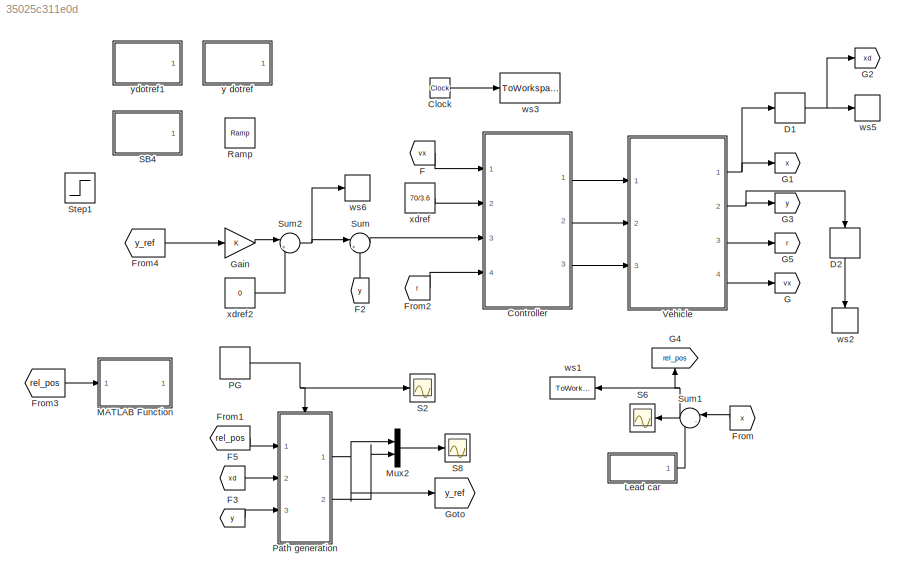
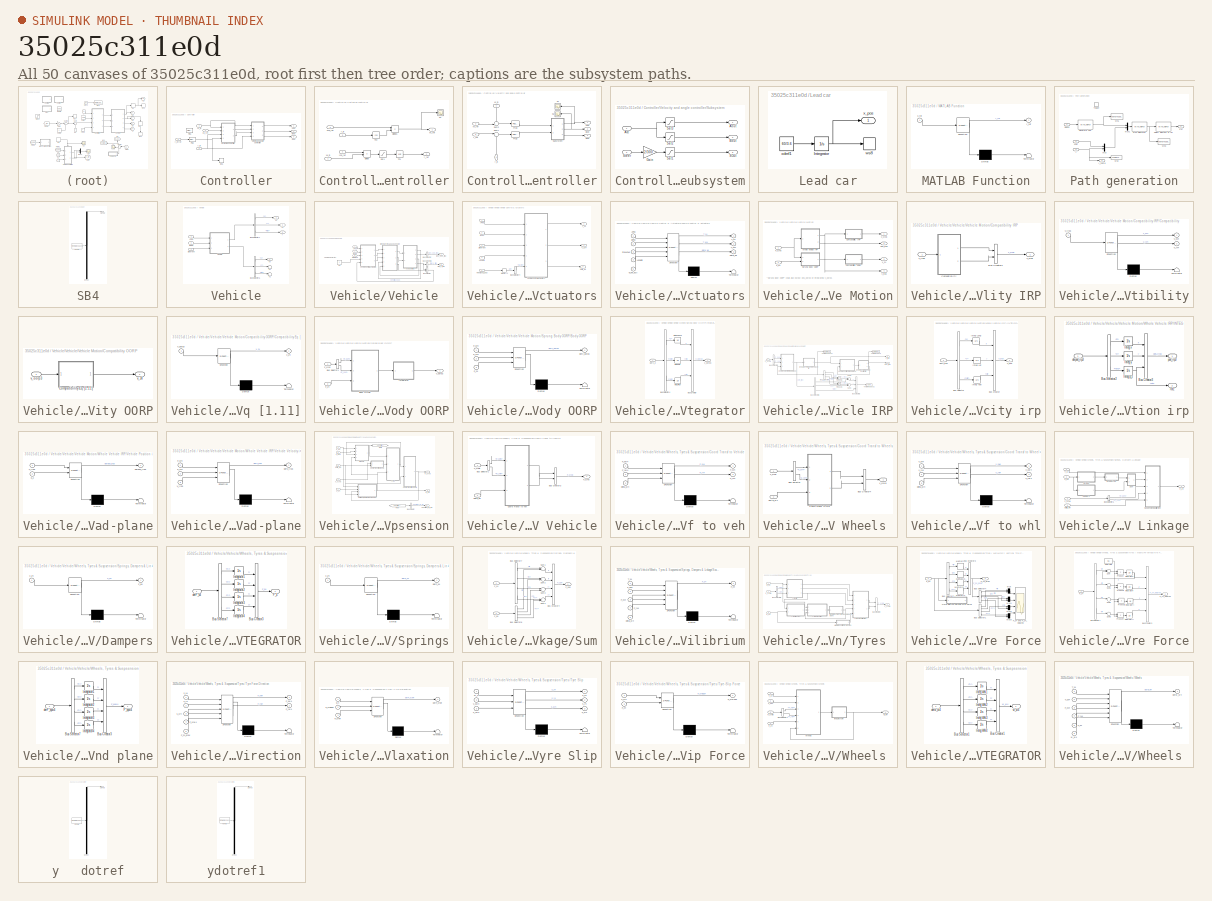
[diagram: thumbnail index - all 50 canvases of the model, root first then tree order]
MODEL slx_35025c311e0d
KIND model
CONFIG StopFcn = plotting
BLOCK [Clock] Clock
BLOCK [SubSystem] Controller
  Ports = [4, 3]
  RequestExecContextInheritance = off
BLOCK [Outport] Controller/Aout
  IconDisplay = Port number
BLOCK [Outport] Controller/Bout
  IconDisplay = Port number
  Port = 2
BLOCK [SubSystem] Controller/Cartesian controller
  Ports = [4, 2]
  RequestExecContextInheritance = off
BLOCK [Product] Controller/Cartesian controller/Divide
  InputSameDT = off
  Inputs = */
  OutDataTypeStr = Inherit: Inherit via internal rule
  Ports = [2, 1]
  RndMeth = Floor
  SaturateOnIntegerOverflow = off
BLOCK [Product] Controller/Cartesian controller/Divide1
  InputSameDT = off
  Inputs = */
  OutDataTypeStr = Inherit: Inherit via internal rule
  Ports = [2, 1]
  RndMeth = Floor
  SaturateOnIntegerOverflow = off
BLOCK [Scope] Controller/Cartesian controller/S4
  Floating = off
  NumInputPorts = 1
  Ports = [1]
  SaveName = ScopeData4
  ShowLegends = off
BLOCK [Saturate] Controller/Cartesian controller/Sat1
  InputPortMap = u0
  LowerLimit = -1
  Ports = [1, 1]
  UpperLimit = 1
BLOCK [Trigonometry] Controller/Cartesian controller/TF1
  Operator = asin
  Ports = [1, 1]
BLOCK [Trigonometry] Controller/Cartesian controller/TF2
  Operator = cos
  Ports = [1, 1]
BLOCK [Inport] Controller/Cartesian controller/r_in
  IconDisplay = Port number
  Port = 3
BLOCK [Outport] Controller/Cartesian controller/r_ref
  IconDisplay = Port number
  Port = 2
BLOCK [Inport] Controller/Cartesian controller/vx_in
  IconDisplay = Port number
BLOCK [Outport] Controller/Cartesian controller/vx_ref
  IconDisplay = Port number
BLOCK [Inport] Controller/Cartesian controller/xcd_ref
  IconDisplay = Port number
  Port = 2
BLOCK [Inport] Controller/Cartesian controller/ycd_ref
  IconDisplay = Port number
  Port = 4
BLOCK [Reference] Controller/PID1  REF=simulink/Continuous/PID Controller
  AntiWindupMode = none
  Controller = PID
  D = 4
  DOutDataTypeStr = Inherit: Inherit via internal rule
  DOutMax = []
  DOutMin = []
  DParamDataTypeStr = Inherit: Inherit via internal rule
  DParamMax = []
  DParamMin = []
  DifferentiatorICPrevScaledInput = 0
  DifferentiatorOutDataTypeStr = Inherit: Inherit via internal rule
  DifferentiatorOutMax = []
  DifferentiatorOutMin = []
  ExternalReset = none
  FilterContinuousStateAttributes = ''
  FilterMethod = Forward Euler
  FilterOutDataTypeStr = Inherit: Inherit via internal rule
  FilterOutMax = []
  FilterOutMin = []
  FilterRTWStateStorageClass = Auto
  FilterStateMustResolveToSignalObject = off
  Form = Parallel
  I = 0
  IOutDataTypeStr = Inherit: Inherit via internal rule
  IOutMax = []
  IOutMin = []
  IParamDataTypeStr = Inherit: Inherit via internal rule
  IParamMax = []
  IParamMin = []
  IgnoreLimit = off
  InitialConditionForFilter = 0
  InitialConditionForIntegrator = 0
  InitialConditionSource = internal
  IntegratorContinuousStateAttributes = ''
  IntegratorMethod = Forward Euler
  IntegratorOutDataTypeStr = Inherit: Inherit via internal rule
  IntegratorOutMax = []
  IntegratorOutMin = []
  IntegratorRTWStateStorageClass = Auto
  IntegratorStateMustResolveToSignalObject = off
  Kb = 1
  KbOutDataTypeStr = Inherit: Inherit via internal rule
  KbOutMax = []
  KbOutMin = []
  KbParamDataTypeStr = Inherit: Inherit via internal rule
  KbParamMax = []
  KbParamMin = []
  Kt = 1
  KtOutDataTypeStr = Inherit: Inherit via internal rule
  KtOutMax = []
  KtOutMin = []
  KtParamDataTypeStr = Inherit: Inherit via internal rule
  KtParamMax = []
  KtParamMin = []
  LimitOutput = off
  LinearizeAsGain = on
  LockScale = off
  LowerSaturationLimit = -inf
  N = 0
  NOutDataTypeStr = Inherit: Inherit via internal rule
  NOutMax = []
  NOutMin = []
  NParamDataTypeStr = Inherit: Inherit via internal rule
  NParamMax = []
  NParamMin = []
  P = 2
  POutDataTypeStr = Inherit: Inherit via internal rule
  POutMax = []
  POutMin = []
  PParamDataTypeStr = Inherit: Inherit via internal rule
  PParamMax = []
  PParamMin = []
  Ports = [1, 1]
  RndMeth = Floor
  SampleTime = -1
  SaturateOnIntegerOverflow = off
  SaturationOutDataTypeStr = Inherit: Same as input
  SaturationOutMax = []
  SaturationOutMin = []
  SourceBlock = simulink/Continuous/PID Controller
  SourceType = PID 1dof
  SumAccumDataTypeStr = Inherit: Inherit via internal rule
  SumDAccumDataTypeStr = Inherit: Inherit via internal rule
  SumDOutDataTypeStr = Inherit: Inherit via internal rule
  SumDOutMax = []
  SumDOutMin = []
  SumI1AccumDataTypeStr = Inherit: Inherit via internal rule
  SumI1OutDataTypeStr = Inherit: Inherit via internal rule
  SumI1OutMax = []
  SumI1OutMin = []
  SumI2AccumDataTypeStr = Inherit: Inherit via internal rule
  SumI2OutDataTypeStr = Inherit: Inherit via internal rule
  SumI2OutMax = []
  SumI2OutMin = []
  SumI3AccumDataTypeStr = Inherit: Inherit via internal rule
  SumI3OutDataTypeStr = Inherit: Inherit via internal rule
  SumI3OutMax = []
  SumI3OutMin = []
  SumOutDataTypeStr = Inherit: Inherit via internal rule
  SumOutMax = []
  SumOutMin = []
  TimeDomain = Continuous-time
  TrackingMode = off
  UpperSaturationLimit = inf
  UseFilter = on
  ZeroCross = on
BLOCK [Reference] Controller/PID2  REF=simulink/Continuous/PID Controller
  AntiWindupMode = none
  Controller = PID
  D = 0.1
  DOutDataTypeStr = Inherit: Inherit via internal rule
  DOutMax = []
  DOutMin = []
  DParamDataTypeStr = Inherit: Inherit via internal rule
  DParamMax = []
  DParamMin = []
  DifferentiatorICPrevScaledInput = 0
  DifferentiatorOutDataTypeStr = Inherit: Inherit via internal rule
  DifferentiatorOutMax = []
  DifferentiatorOutMin = []
  ExternalReset = none
  FilterContinuousStateAttributes = ''
  FilterMethod = Forward Euler
  FilterOutDataTypeStr = Inherit: Inherit via internal rule
  FilterOutMax = []
  FilterOutMin = []
  FilterRTWStateStorageClass = Auto
  FilterStateMustResolveToSignalObject = off
  Form = Parallel
  I = 1
  IOutDataTypeStr = Inherit: Inherit via internal rule
  IOutMax = []
  IOutMin = []
  IParamDataTypeStr = Inherit: Inherit via internal rule
  IParamMax = []
  IParamMin = []
  IgnoreLimit = off
  InitialConditionForFilter = 0
  InitialConditionForIntegrator = 0
  InitialConditionSource = internal
  IntegratorContinuousStateAttributes = ''
  IntegratorMethod = Forward Euler
  IntegratorOutDataTypeStr = Inherit: Inherit via internal rule
  IntegratorOutMax = []
  IntegratorOutMin = []
  IntegratorRTWStateStorageClass = Auto
  IntegratorStateMustResolveToSignalObject = off
  Kb = 1
  KbOutDataTypeStr = Inherit: Inherit via internal rule
  KbOutMax = []
  KbOutMin = []
  KbParamDataTypeStr = Inherit: Inherit via internal rule
  KbParamMax = []
  KbParamMin = []
  Kt = 1
  KtOutDataTypeStr = Inherit: Inherit via internal rule
  KtOutMax = []
  KtOutMin = []
  KtParamDataTypeStr = Inherit: Inherit via internal rule
  KtParamMax = []
  KtParamMin = []
  LimitOutput = off
  LinearizeAsGain = on
  LockScale = off
  LowerSaturationLimit = -inf
  N = 0
  NOutDataTypeStr = Inherit: Inherit via internal rule
  NOutMax = []
  NOutMin = []
  NParamDataTypeStr = Inherit: Inherit via internal rule
  NParamMax = []
  NParamMin = []
  P = 2
  POutDataTypeStr = Inherit: Inherit via internal rule
  POutMax = []
  POutMin = []
  PParamDataTypeStr = Inherit: Inherit via internal rule
  PParamMax = []
  PParamMin = []
  Ports = [1, 1]
  RndMeth = Floor
  SampleTime = -1
  SaturateOnIntegerOverflow = off
  SaturationOutDataTypeStr = Inherit: Same as input
  SaturationOutMax = []
  SaturationOutMin = []
  SourceBlock = simulink/Continuous/PID Controller
  SourceType = PID 1dof
  SumAccumDataTypeStr = Inherit: Inherit via internal rule
  SumDAccumDataTypeStr = Inherit: Inherit via internal rule
  SumDOutDataTypeStr = Inherit: Inherit via internal rule
  SumDOutMax = []
  SumDOutMin = []
  SumI1AccumDataTypeStr = Inherit: Inherit via internal rule
  SumI1OutDataTypeStr = Inherit: Inherit via internal rule
  SumI1OutMax = []
  SumI1OutMin = []
  SumI2AccumDataTypeStr = Inherit: Inherit via internal rule
  SumI2OutDataTypeStr = Inherit: Inherit via internal rule
  SumI2OutMax = []
  SumI2OutMin = []
  SumI3AccumDataTypeStr = Inherit: Inherit via internal rule
  SumI3OutDataTypeStr = Inherit: Inherit via internal rule
  SumI3OutMax = []
  SumI3OutMin = []
  SumOutDataTypeStr = Inherit: Inherit via internal rule
  SumOutMax = []
  SumOutMin = []
  TimeDomain = Continuous-time
  TrackingMode = off
  UpperSaturationLimit = inf
  UseFilter = on
  ZeroCross = on
BLOCK [Outport] Controller/Sout
  IconDisplay = Port number
  Port = 3
BLOCK [SubSystem] Controller/Velocity and angle controller
  Ports = [4, 3]
  RequestExecContextInheritance = off
BLOCK [Outport] Controller/Velocity and angle controller/Aout
  IconDisplay = Port number
BLOCK [Outport] Controller/Velocity and angle controller/Bout
  IconDisplay = Port number
  Port = 2
BLOCK [Reference] Controller/Velocity and angle controller/PID2  REF=simulink/Continuous/PID Controller
  AntiWindupMode = none
  Controller = PID
  D = 0
  DOutDataTypeStr = Inherit: Inherit via internal rule
  DOutMax = []
  DOutMin = []
  DParamDataTypeStr = Inherit: Inherit via internal rule
  DParamMax = []
  DParamMin = []
  DifferentiatorICPrevScaledInput = 0
  DifferentiatorOutDataTypeStr = Inherit: Inherit via internal rule
  DifferentiatorOutMax = []
  DifferentiatorOutMin = []
  ExternalReset = none
  FilterContinuousStateAttributes = ''
  FilterMethod = Forward Euler
  FilterOutDataTypeStr = Inherit: Inherit via internal rule
  FilterOutMax = []
  FilterOutMin = []
  FilterRTWStateStorageClass = Auto
  FilterStateMustResolveToSignalObject = off
  Form = Parallel
  I = 1
  IOutDataTypeStr = Inherit: Inherit via internal rule
  IOutMax = []
  IOutMin = []
  IParamDataTypeStr = Inherit: Inherit via internal rule
  IParamMax = []
  IParamMin = []
  IgnoreLimit = off
  InitialConditionForFilter = 0
  InitialConditionForIntegrator = 0
  InitialConditionSource = internal
  IntegratorContinuousStateAttributes = ''
  IntegratorMethod = Forward Euler
  IntegratorOutDataTypeStr = Inherit: Inherit via internal rule
  IntegratorOutMax = []
  IntegratorOutMin = []
  IntegratorRTWStateStorageClass = Auto
  IntegratorStateMustResolveToSignalObject = off
  Kb = 1
  KbOutDataTypeStr = Inherit: Inherit via internal rule
  KbOutMax = []
  KbOutMin = []
  KbParamDataTypeStr = Inherit: Inherit via internal rule
  KbParamMax = []
  KbParamMin = []
  Kt = 1
  KtOutDataTypeStr = Inherit: Inherit via internal rule
  KtOutMax = []
  KtOutMin = []
  KtParamDataTypeStr = Inherit: Inherit via internal rule
  KtParamMax = []
  KtParamMin = []
  LimitOutput = off
  LinearizeAsGain = on
  LockScale = off
  LowerSaturationLimit = -inf
  N = 100
  NOutDataTypeStr = Inherit: Inherit via internal rule
  NOutMax = []
  NOutMin = []
  NParamDataTypeStr = Inherit: Inherit via internal rule
  NParamMax = []
  NParamMin = []
  P = 5000
  POutDataTypeStr = Inherit: Inherit via internal rule
  POutMax = []
  POutMin = []
  PParamDataTypeStr = Inherit: Inherit via internal rule
  PParamMax = []
  PParamMin = []
  Ports = [1, 1]
  RndMeth = Floor
  SampleTime = -1
  SaturateOnIntegerOverflow = off
  SaturationOutDataTypeStr = Inherit: Same as input
  SaturationOutMax = []
  SaturationOutMin = []
  SourceBlock = simulink/Continuous/PID Controller
  SourceType = PID 1dof
  SumAccumDataTypeStr = Inherit: Inherit via internal rule
  SumDAccumDataTypeStr = Inherit: Inherit via internal rule
  SumDOutDataTypeStr = Inherit: Inherit via internal rule
  SumDOutMax = []
  SumDOutMin = []
  SumI1AccumDataTypeStr = Inherit: Inherit via internal rule
  SumI1OutDataTypeStr = Inherit: Inherit via internal rule
  SumI1OutMax = []
  SumI1OutMin = []
  SumI2AccumDataTypeStr = Inherit: Inherit via internal rule
  SumI2OutDataTypeStr = Inherit: Inherit via internal rule
  SumI2OutMax = []
  SumI2OutMin = []
  SumI3AccumDataTypeStr = Inherit: Inherit via internal rule
  SumI3OutDataTypeStr = Inherit: Inherit via internal rule
  SumI3OutMax = []
  SumI3OutMin = []
  SumOutDataTypeStr = Inherit: Inherit via internal rule
  SumOutMax = []
  SumOutMin = []
  TimeDomain = Continuous-time
  TrackingMode = off
  UpperSaturationLimit = inf
  UseFilter = on
  ZeroCross = on
BLOCK [Reference] Controller/Velocity and angle controller/PID3  REF=simulink/Continuous/PID Controller
  AntiWindupMode = none
  Controller = P
  D = 0
  DOutDataTypeStr = Inherit: Inherit via internal rule
  DOutMax = []
  DOutMin = []
  DParamDataTypeStr = Inherit: Inherit via internal rule
  DParamMax = []
  DParamMin = []
  DifferentiatorICPrevScaledInput = 0
  DifferentiatorOutDataTypeStr = Inherit: Inherit via internal rule
  DifferentiatorOutMax = []
  DifferentiatorOutMin = []
  ExternalReset = none
  FilterContinuousStateAttributes = ''
  FilterMethod = Forward Euler
  FilterOutDataTypeStr = Inherit: Inherit via internal rule
  FilterOutMax = []
  FilterOutMin = []
  FilterRTWStateStorageClass = Auto
  FilterStateMustResolveToSignalObject = off
  Form = Parallel
  I = 0
  IOutDataTypeStr = Inherit: Inherit via internal rule
  IOutMax = []
  IOutMin = []
  IParamDataTypeStr = Inherit: Inherit via internal rule
  IParamMax = []
  IParamMin = []
  IgnoreLimit = off
  InitialConditionForFilter = 0
  InitialConditionForIntegrator = 0
  InitialConditionSource = internal
  IntegratorContinuousStateAttributes = ''
  IntegratorMethod = Forward Euler
  IntegratorOutDataTypeStr = Inherit: Inherit via internal rule
  IntegratorOutMax = []
  IntegratorOutMin = []
  IntegratorRTWStateStorageClass = Auto
  IntegratorStateMustResolveToSignalObject = off
  Kb = 1
  KbOutDataTypeStr = Inherit: Inherit via internal rule
  KbOutMax = []
  KbOutMin = []
  KbParamDataTypeStr = Inherit: Inherit via internal rule
  KbParamMax = []
  KbParamMin = []
  Kt = 1
  KtOutDataTypeStr = Inherit: Inherit via internal rule
  KtOutMax = []
  KtOutMin = []
  KtParamDataTypeStr = Inherit: Inherit via internal rule
  KtParamMax = []
  KtParamMin = []
  LimitOutput = off
  LinearizeAsGain = on
  LockScale = off
  LowerSaturationLimit = -inf
  N = 100
  NOutDataTypeStr = Inherit: Inherit via internal rule
  NOutMax = []
  NOutMin = []
  NParamDataTypeStr = Inherit: Inherit via internal rule
  NParamMax = []
  NParamMin = []
  P = 100
  POutDataTypeStr = Inherit: Inherit via internal rule
  POutMax = []
  POutMin = []
  PParamDataTypeStr = Inherit: Inherit via internal rule
  PParamMax = []
  PParamMin = []
  Ports = [1, 1]
  RndMeth = Floor
  SampleTime = -1
  SaturateOnIntegerOverflow = off
  SaturationOutDataTypeStr = Inherit: Same as input
  SaturationOutMax = []
  SaturationOutMin = []
  SourceBlock = simulink/Continuous/PID Controller
  SourceType = PID 1dof
  SumAccumDataTypeStr = Inherit: Inherit via internal rule
  SumDAccumDataTypeStr = Inherit: Inherit via internal rule
  SumDOutDataTypeStr = Inherit: Inherit via internal rule
  SumDOutMax = []
  SumDOutMin = []
  SumI1AccumDataTypeStr = Inherit: Inherit via internal rule
  SumI1OutDataTypeStr = Inherit: Inherit via internal rule
  SumI1OutMax = []
  SumI1OutMin = []
  SumI2AccumDataTypeStr = Inherit: Inherit via internal rule
  SumI2OutDataTypeStr = Inherit: Inherit via internal rule
  SumI2OutMax = []
  SumI2OutMin = []
  SumI3AccumDataTypeStr = Inherit: Inherit via internal rule
  SumI3OutDataTypeStr = Inherit: Inherit via internal rule
  SumI3OutMax = []
  SumI3OutMin = []
  SumOutDataTypeStr = Inherit: Inherit via internal rule
  SumOutMax = []
  SumOutMin = []
  TimeDomain = Continuous-time
  TrackingMode = off
  UpperSaturationLimit = inf
  UseFilter = on
  ZeroCross = on
BLOCK [Scope] Controller/Velocity and angle controller/S1
  Floating = off
  LimitDataPoints = off
  NumInputPorts = 1
  Ports = [1]
  SaveName = ScopeData6
  ShowLegends = off
  YMax = 9
  YMin = 0
BLOCK [Scope] Controller/Velocity and angle controller/S2
  Floating = off
  LimitDataPoints = off
  NumInputPorts = 1
  Ports = [1]
  SaveName = ScopeData7
  ShowLegends = off
  YMax = 9
  YMin = 0
BLOCK [Outport] Controller/Velocity and angle controller/Sout
  IconDisplay = Port number
  Port = 3
BLOCK [SubSystem] Controller/Velocity and angle controller/Subsystem
  Ports = [2, 3]
  RequestExecContextInheritance = off
BLOCK [Inport] Controller/Velocity and angle controller/Subsystem/Acc
  IconDisplay = Port number
BLOCK [Outport] Controller/Velocity and angle controller/Subsystem/Aout
  IconDisplay = Port number
BLOCK [Outport] Controller/Velocity and angle controller/Subsystem/Bout
  IconDisplay = Port number
  Port = 2
BLOCK [Gain] Controller/Velocity and angle controller/Subsystem/Gain
  Gain = 2/300
  OutDataTypeStr = Inherit: Inherit via internal rule
  ParamDataTypeStr = Inherit: Inherit via internal rule
  SaturateOnIntegerOverflow = off
BLOCK [Outport] Controller/Velocity and angle controller/Subsystem/SOut
  IconDisplay = Port number
  Port = 3
BLOCK [Saturate] Controller/Velocity and angle controller/Subsystem/Sat1
  InputPortMap = u0
  LowerLimit = -10
  Ports = [1, 1]
  UpperLimit = 10
BLOCK [Saturate] Controller/Velocity and angle controller/Subsystem/Sat2
  InputPortMap = u0
  LowerLimit = -1
  Ports = [1, 1]
  UpperLimit = 0
BLOCK [Saturate] Controller/Velocity and angle controller/Subsystem/Sat3
  InputPortMap = u0
  LowerLimit = 0
  Ports = [1, 1]
  UpperLimit = 1
BLOCK [Inport] Controller/Velocity and angle controller/Subsystem/Steer
  IconDisplay = Port number
  Port = 2
BLOCK [Sum] Controller/Velocity and angle controller/Sum1
  IconShape = round
  InputSameDT = off
  Inputs = |+-
  OutDataTypeStr = Inherit: Inherit via internal rule
  Ports = [2, 1]
  SaturateOnIntegerOverflow = off
BLOCK [Sum] Controller/Velocity and angle controller/Sum2
  IconShape = round
  InputSameDT = off
  Inputs = -+|
  OutDataTypeStr = Inherit: Inherit via internal rule
  Ports = [2, 1]
  SaturateOnIntegerOverflow = off
BLOCK [Inport] Controller/Velocity and angle controller/r_in
  IconDisplay = Port number
  Port = 4
BLOCK [Inport] Controller/Velocity and angle controller/r_ref
  IconDisplay = Port number
  Port = 3
BLOCK [Inport] Controller/Velocity and angle controller/vx_in
  IconDisplay = Port number
BLOCK [Inport] Controller/Velocity and angle controller/vx_ref
  IconDisplay = Port number
  Port = 2
BLOCK [Inport] Controller/r_in
  IconDisplay = Port number
  Port = 4
BLOCK [Inport] Controller/vx_in
  IconDisplay = Port number
BLOCK [ToWorkspace] Controller/ws5
  FixptAsFi = on
  MaxDataPoints = inf
  Ports = [1]
  SampleTime = -1
  Save2DSignal = 3-D array (concatenate along third dimension)
  VariableName = ydc_ref
BLOCK [Inport] Controller/xd_ref
  IconDisplay = Port number
  Port = 2
BLOCK [Inport] Controller/y_error
  IconDisplay = Port number
  Port = 3
BLOCK [Derivative] D1
BLOCK [Derivative] D2
BLOCK [From] F
  GotoTag = vx
BLOCK [From] F2
  GotoTag = y
BLOCK [From] F3
  GotoTag = y
BLOCK [From] F5
  GotoTag = xd
BLOCK [From] From
  GotoTag = x
BLOCK [From] From1
  GotoTag = rel_pos
BLOCK [From] From2
  GotoTag = r
BLOCK [From] From3
  Commented = on
  GotoTag = rel_pos
BLOCK [From] From4
  GotoTag = y_ref
BLOCK [Goto] G
  GotoTag = vx
BLOCK [Goto] G1
  GotoTag = x
BLOCK [Goto] G2
  GotoTag = xd
BLOCK [Goto] G3
  GotoTag = y
BLOCK [Goto] G4
  GotoTag = rel_pos
BLOCK [Goto] G5
  GotoTag = r
BLOCK [Gain] Gain
  OutDataTypeStr = Inherit: Inherit via internal rule
  ParamDataTypeStr = Inherit: Inherit via internal rule
  SaturateOnIntegerOverflow = off
BLOCK [Goto] Goto
  GotoTag = y_ref
BLOCK [SubSystem] Lead car
  Ports = [0, 1]
  RequestExecContextInheritance = off
BLOCK [Integrator] Lead car/Integrator
  InitialCondition = 70
  Ports = [1, 1]
BLOCK [ToWorkspace] Lead car/ws8
  FixptAsFi = on
  MaxDataPoints = inf
  Ports = [1]
  SampleTime = -1
  Save2DSignal = 3-D array (concatenate along third dimension)
  VariableName = fcar
BLOCK [Outport] Lead car/x_pos
  IconDisplay = Port number
BLOCK [Constant] Lead car/xdref1
  Value = 60/3.6
BLOCK [SubSystem] MATLAB Function
  Commented = on
  ErrorFcn = Stateflow.Translate.translate
  PermitHierarchicalResolution = ExplicitOnly
  Ports = [1, 1]
  RequestExecContextInheritance = off
  SFBlockType = MATLAB Function
  TreatAsAtomicUnit = on
BLOCK [Demux] MATLAB Function/ Demux 
  Outputs = 1
  Ports = [1, 1]
BLOCK [S-Function] MATLAB Function/ SFunction 
  EnableBusSupport = on
  FunctionName = sf_sfun
  PortCounts = [1 2]
  Ports = [1, 2]
  Tag = Stateflow S-Function Modified 2
BLOCK [Terminator] MATLAB Function/ Terminator 
BLOCK [Inport] MATLAB Function/x_rel
  IconDisplay = Port number
BLOCK [Outport] MATLAB Function/y_ref
  IconDisplay = Port number
BLOCK [Mux] Mux2
  DisplayOption = bar
  Inputs = 2
  Ports = [2, 1]
BLOCK [DiscretePulseGenerator] PG
  Period = tp
  PhaseDelay = 0.0001
  Ports = [0, 1]
  PulseType = Time based
  PulseWidth = 5
BLOCK [SubSystem] Path generation
  Ports = [3, 2, 0, 1]
  RequestExecContextInheritance = off
BLOCK [MATLABFcn] Path generation/Generate XSP
  MATLABFcn = generateXsp
  Ports = [1, 1]
BLOCK [MATLABFcn] Path generation/MPC algorithm
  MATLABFcn = MPC2
  Ports = [1, 1]
BLOCK [Mux] Path generation/Mux
  DisplayOption = bar
  Inputs = 2
  Ports = [2, 1]
BLOCK [Mux] Path generation/Mux1
  DisplayOption = bar
  Inputs = 2
  Ports = [2, 1]
BLOCK [Inport] Path generation/RelPos
  IconDisplay = Port number
BLOCK [MATLABFcn] Path generation/Select element in ref
  MATLABFcn = targ_sel
  Ports = [1, 1]
BLOCK [TriggerPort] Path generation/Trigger
  PortDimensions = 1
  Ports = []
  StatesWhenEnabling = held
BLOCK [ToWorkspace] Path generation/WS1
  FixptAsFi = on
  MaxDataPoints = inf
  Ports = [1]
  SampleTime = -1
  Save2DSignal = 3-D array (concatenate along third dimension)
  VariableName = xsp
BLOCK [ToWorkspace] Path generation/WS2
  FixptAsFi = on
  MaxDataPoints = inf
  Ports = [1]
  SampleTime = -1
  Save2DSignal = 3-D array (concatenate along third dimension)
  VariableName = y_sampled
BLOCK [ToWorkspace] Path generation/WS3
  FixptAsFi = on
  MaxDataPoints = inf
  Ports = [1]
  SampleTime = -1
  Save2DSignal = 3-D array (concatenate along third dimension)
  VariableName = simout
BLOCK [Outport] Path generation/Yref
  IconDisplay = Port number
BLOCK [Inport] Path generation/xDot
  IconDisplay = Port number
  Port = 2
BLOCK [Inport] Path generation/y
  IconDisplay = Port number
  Port = 3
BLOCK [Outport] Path generation/y_samp
  IconDisplay = Port number
  Port = 2
BLOCK [Reference] Ramp  REF=simulink/Sources/Ramp
  Ports = [0, 1]
  SourceBlock = simulink/Sources/Ramp
  SourceType = Ramp
  VectorParams1D = on
  X0 = 0
  slope = 1
  start = 1
BLOCK [Scope] S2
  Floating = off
  LimitDataPoints = off
  NumInputPorts = 1
  Ports = [1]
  SaveName = ScopeData1
  ShowLegends = off
  YMax = 1.5e-12
  YMin = -1.5e-12
BLOCK [Scope] S6
  Floating = off
  LimitDataPoints = off
  NumInputPorts = 1
  Ports = [1]
  SaveName = ScopeData8
  ShowLegends = off
  YMax = 9
  YMin = 0
BLOCK [Scope] S8
  Floating = off
  LimitDataPoints = off
  NumInputPorts = 1
  Ports = [1]
  SaveName = ScopeData10
  ShowLegends = off
  YMax = 9
  YMin = 0
BLOCK [SubSystem] SB4
  ClipboardFcn = sigbuilder_block('clipboard');
  CloseFcn = sigbuilder_block('close');
  ContinueFcn = sigbuilder_block('continue');
  CopyFcn = sigbuilder_block('copy');
  DeleteFcn = sigbuilder_block('delete');
  LoadFcn = sigbuilder_block('load');
  MaskHideContents = on
  ModelCloseFcn = sigbuilder_block('modelClose');
  NameChangeFcn = sigbuilder_block('namechange');
  OpenFcn = sigbuilder_block('open',[437.6 199.2 550.4 400 ]);
  PauseFcn = sigbuilder_block('pause');
  Ports = [0, 1]
  PreSaveFcn = sigbuilder_block('preSave');
  RequestExecContextInheritance = off
  StartFcn = sigbuilder_block('start');
  StopFcn = sigbuilder_block('stop');
  Tag = STV Subsys
BLOCK [Demux] SB4/Demux
  Outputs = 1
  Ports = [1, 1]
  Tag = STV Demux
BLOCK [FromWorkspace] SB4/FromWs
  SampleTime = 0
  Tag = STV FromWs
  VariableName = tuvar
  ZeroCross = on
BLOCK [Outport] SB4/Signal 2
  IconDisplay = Port number
  Tag = STV Outport
BLOCK [Step] Step1
  SampleTime = 0
  Time = 6
BLOCK [Sum] Sum
  IconShape = round
  InputSameDT = off
  Inputs = |+-
  OutDataTypeStr = Inherit: Inherit via internal rule
  Ports = [2, 1]
  SaturateOnIntegerOverflow = off
BLOCK [Sum] Sum1
  IconShape = round
  InputSameDT = off
  Inputs = |-+
  OutDataTypeStr = Inherit: Inherit via internal rule
  Ports = [2, 1]
  SaturateOnIntegerOverflow = off
BLOCK [Sum] Sum2
  IconShape = round
  InputSameDT = off
  Inputs = |++
  OutDataTypeStr = Inherit: Inherit via internal rule
  Ports = [2, 1]
  SaturateOnIntegerOverflow = off
BLOCK [SubSystem] Vehicle
  Ports = [3, 4]
  RequestExecContextInheritance = off
BLOCK [Inport] Vehicle/APed
  IconDisplay = Port number
BLOCK [Inport] Vehicle/BPed
  IconDisplay = Port number
  Port = 2
BLOCK [BusSelector] Vehicle/Bus Selector1
  OutputSignals = x,y,rotz
  Ports = [1, 3]
BLOCK [BusSelector] Vehicle/Bus Selector6
  OutputSignals = x,y,rotz
  Ports = [1, 3]
BLOCK [Inport] Vehicle/SteWhlAn
  IconDisplay = Port number
  Port = 3
BLOCK [Terminator] Vehicle/T1
BLOCK [Terminator] Vehicle/T2
BLOCK [SubSystem] Vehicle/Vehicle
  Ports = [3, 2]
  RequestExecContextInheritance = off
BLOCK [Inport] Vehicle/Vehicle/APed
  IconDisplay = Port number
BLOCK [Inport] Vehicle/Vehicle/BPed
  IconDisplay = Port number
  Port = 2
BLOCK [BusCreator] Vehicle/Vehicle/Bus Creator
  DisplayOption = bar
  Inputs = 2
  Ports = [2, 1]
BLOCK [BusSelector] Vehicle/Vehicle/Bus Selector
  OutputAsBus = on
  OutputSignals = x,y,rotz
  Ports = [1, 1]
BLOCK [BusSelector] Vehicle/Vehicle/Bus Selector1
  OutputAsBus = on
  OutputSignals = x,y,rotz
  Ports = [1, 1]
BLOCK [Constant] Vehicle/Vehicle/C2
BLOCK [Outport] Vehicle/Vehicle/Drvr_v_irp3
  IconDisplay = Port number
  Port = 2
BLOCK [Outport] Vehicle/Vehicle/Env_pos_irp3
  IconDisplay = Port number
BLOCK [Inport] Vehicle/Vehicle/SteWhlAn
  IconDisplay = Port number
  Port = 3
BLOCK [SubSystem] Vehicle/Vehicle/Vehicle Control & Actuators
  Ports = [5, 3]
  RequestExecContextInheritance = off
BLOCK [Inport] Vehicle/Vehicle/Vehicle Control & Actuators/APed
  IconDisplay = Port number
BLOCK [Inport] Vehicle/Vehicle/Vehicle Control & Actuators/BPed
  IconDisplay = Port number
  Port = 2
BLOCK [BusSelector] Vehicle/Vehicle/Vehicle Control & Actuators/Bus Selector4
  OutputSignals = VehCtrlAct_w_w4.w_w4
  Ports = [1, 1]
BLOCK [Inport] Vehicle/Vehicle/Vehicle Control & Actuators/LongDir
  IconDisplay = Port number
  Port = 4
BLOCK [Memory] Vehicle/Vehicle/Vehicle Control & Actuators/Memory1
  X0 = Par.Init.v_x
BLOCK [Inport] Vehicle/Vehicle/Vehicle Control & Actuators/SteWhlAn
  IconDisplay = Port number
  Port = 3
BLOCK [Outport] Vehicle/Vehicle/Vehicle Control & Actuators/T_s4
  IconDisplay = Port number
BLOCK [Outport] Vehicle/Vehicle/Vehicle Control & Actuators/T_us4
  IconDisplay = Port number
  Port = 2
BLOCK [Inport] Vehicle/Vehicle/Vehicle Control & Actuators/VehCtrlAct_bus
  IconDisplay = Port number
  Port = 5
BLOCK [Outport] Vehicle/Vehicle/Vehicle Control & Actuators/delta_w4
  IconDisplay = Port number
  Port = 3
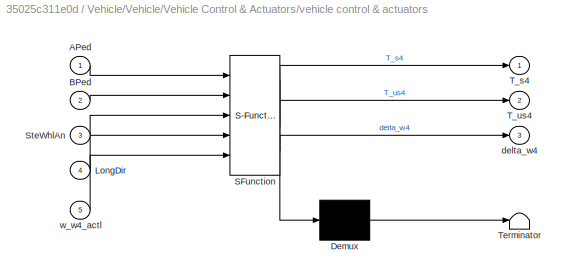
BLOCK [SubSystem] Vehicle/Vehicle/Vehicle Control & Actuators/vehicle control & actuators
  ErrorFcn = Stateflow.Translate.translate
  MinAlgLoopOccurrences = on
  PermitHierarchicalResolution = ExplicitOnly
  Ports = [5, 3]
  RequestExecContextInheritance = off
  SFBlockType = MATLAB Function
  TreatAsAtomicUnit = on
BLOCK [Demux] Vehicle/Vehicle/Vehicle Control & Actuators/vehicle control & actuators/ Demux 
  Outputs = 1
  Ports = [1, 1]
BLOCK [S-Function] Vehicle/Vehicle/Vehicle Control & Actuators/vehicle control & actuators/ SFunction 
  EnableBusSupport = on
  FunctionName = sf_sfun
  Parameters = Par
  PortCounts = [5 4]
  Ports = [5, 4]
  Tag = Stateflow S-Function Modified 28
BLOCK [Terminator] Vehicle/Vehicle/Vehicle Control & Actuators/vehicle control & actuators/ Terminator 
BLOCK [Inport] Vehicle/Vehicle/Vehicle Control & Actuators/vehicle control & actuators/APed
  IconDisplay = Port number
BLOCK [Inport] Vehicle/Vehicle/Vehicle Control & Actuators/vehicle control & actuators/BPed
  IconDisplay = Port number
  Port = 2
BLOCK [Inport] Vehicle/Vehicle/Vehicle Control & Actuators/vehicle control & actuators/LongDir
  IconDisplay = Port number
  Port = 4
BLOCK [Inport] Vehicle/Vehicle/Vehicle Control & Actuators/vehicle control & actuators/SteWhlAn
  IconDisplay = Port number
  Port = 3
BLOCK [Outport] Vehicle/Vehicle/Vehicle Control & Actuators/vehicle control & actuators/T_s4
  IconDisplay = Port number
BLOCK [Outport] Vehicle/Vehicle/Vehicle Control & Actuators/vehicle control & actuators/T_us4
  IconDisplay = Port number
  Port = 2
BLOCK [Outport] Vehicle/Vehicle/Vehicle Control & Actuators/vehicle control & actuators/delta_w4
  IconDisplay = Port number
  Port = 3
BLOCK [Inport] Vehicle/Vehicle/Vehicle Control & Actuators/vehicle control & actuators/w_w4_actl
  IconDisplay = Port number
  Port = 5
BLOCK [SubSystem] Vehicle/Vehicle/Vehicle Motion
  Ports = [2, 4]
  RequestExecContextInheritance = off
BLOCK [SubSystem] Vehicle/Vehicle/Vehicle Motion/Compatibility IRP
  Ports = [1, 1]
  RequestExecContextInheritance = off
BLOCK [BusCreator] Vehicle/Vehicle/Vehicle Motion/Compatibility IRP/Bus Creator3
  DisplayOption = bar
  Inputs = 2
  Ports = [2, 1]
BLOCK [SubSystem] Vehicle/Vehicle/Vehicle Motion/Compatibility IRP/Compatibility
  ErrorFcn = Stateflow.Translate.translate
  PermitHierarchicalResolution = ExplicitOnly
  Ports = [1, 2]
  RequestExecContextInheritance = off
  SFBlockType = MATLAB Function
  TreatAsAtomicUnit = on
BLOCK [Demux] Vehicle/Vehicle/Vehicle Motion/Compatibility IRP/Compatibility/ Demux 
  Outputs = 1
  Ports = [1, 1]
BLOCK [S-Function] Vehicle/Vehicle/Vehicle Motion/Compatibility IRP/Compatibility/ SFunction 
  EnableBusSupport = on
  FunctionName = sf_sfun
  Parameters = Par
  PortCounts = [1 3]
  Ports = [1, 3]
  Tag = Stateflow S-Function Modified 12
BLOCK [Terminator] Vehicle/Vehicle/Vehicle Motion/Compatibility IRP/Compatibility/ Terminator 
BLOCK [Inport] Vehicle/Vehicle/Vehicle Motion/Compatibility IRP/Compatibility/v_irp3
  IconDisplay = Port number
BLOCK [Outport] Vehicle/Vehicle/Vehicle Motion/Compatibility IRP/Compatibility/v_xv4
  IconDisplay = Port number
BLOCK [Outport] Vehicle/Vehicle/Vehicle Motion/Compatibility IRP/Compatibility/v_yv4
  IconDisplay = Port number
  Port = 2
BLOCK [Inport] Vehicle/Vehicle/Vehicle Motion/Compatibility IRP/v_irp3
  IconDisplay = Port number
BLOCK [Outport] Vehicle/Vehicle/Vehicle Motion/Compatibility IRP/v_xyv8
  IconDisplay = Port number
BLOCK [SubSystem] Vehicle/Vehicle/Vehicle Motion/Compatibility OORP
  Ports = [1, 1]
  RequestExecContextInheritance = off
BLOCK [SubSystem] Vehicle/Vehicle/Vehicle Motion/Compatibility OORP/Compatibility Eq [1.11]
  ErrorFcn = Stateflow.Translate.translate
  PermitHierarchicalResolution = ExplicitOnly
  Ports = [1, 1]
  RequestExecContextInheritance = off
  SFBlockType = MATLAB Function
  TreatAsAtomicUnit = on
BLOCK [Demux] Vehicle/Vehicle/Vehicle Motion/Compatibility OORP/Compatibility Eq [1.11]/ Demux 
  Outputs = 1
  Ports = [1, 1]
BLOCK [S-Function] Vehicle/Vehicle/Vehicle Motion/Compatibility OORP/Compatibility Eq [1.11]/ SFunction 
  EnableBusSupport = on
  FunctionName = sf_sfun
  Parameters = Par
  PortCounts = [1 2]
  Ports = [1, 2]
  Tag = Stateflow S-Function Modified 13
BLOCK [Terminator] Vehicle/Vehicle/Vehicle Motion/Compatibility OORP/Compatibility Eq [1.11]/ Terminator 
BLOCK [Inport] Vehicle/Vehicle/Vehicle Motion/Compatibility OORP/Compatibility Eq [1.11]/v_oorp3
  IconDisplay = Port number
BLOCK [Outport] Vehicle/Vehicle/Vehicle Motion/Compatibility OORP/Compatibility Eq [1.11]/v_z4
  IconDisplay = Port number
BLOCK [Inport] Vehicle/Vehicle/Vehicle Motion/Compatibility OORP/v_oorp3
  IconDisplay = Port number
BLOCK [Outport] Vehicle/Vehicle/Vehicle Motion/Compatibility OORP/v_z4
  IconDisplay = Port number
BLOCK [Inport] Vehicle/Vehicle/Vehicle Motion/F_xyv8
  IconDisplay = Port number
BLOCK [Inport] Vehicle/Vehicle/Vehicle Motion/F_z4
  IconDisplay = Port number
  Port = 2
BLOCK [SubSystem] Vehicle/Vehicle/Vehicle Motion/Sprung Body OORP
  Ports = [2, 1]
  RequestExecContextInheritance = off
BLOCK [SubSystem] Vehicle/Vehicle/Vehicle Motion/Sprung Body OORP/Body OORP
  ErrorFcn = Stateflow.Translate.translate
  PermitHierarchicalResolution = ExplicitOnly
  Ports = [3, 1]
  RequestExecContextInheritance = off
  SFBlockType = MATLAB Function
  TreatAsAtomicUnit = on
BLOCK [Demux] Vehicle/Vehicle/Vehicle Motion/Sprung Body OORP/Body OORP/ Demux 
  Outputs = 1
  Ports = [1, 1]
BLOCK [S-Function] Vehicle/Vehicle/Vehicle Motion/Sprung Body OORP/Body OORP/ SFunction 
  EnableBusSupport = on
  FunctionName = sf_sfun
  Parameters = Par
  PortCounts = [3 2]
  Ports = [3, 2]
  Tag = Stateflow S-Function Modified 11
BLOCK [Terminator] Vehicle/Vehicle/Vehicle Motion/Sprung Body OORP/Body OORP/ Terminator 
BLOCK [Inport] Vehicle/Vehicle/Vehicle Motion/Sprung Body OORP/Body OORP/F_xv4
  IconDisplay = Port number
BLOCK [Inport] Vehicle/Vehicle/Vehicle Motion/Sprung Body OORP/Body OORP/F_yv4
  IconDisplay = Port number
  Port = 2
BLOCK [Inport] Vehicle/Vehicle/Vehicle Motion/Sprung Body OORP/Body OORP/F_z4
  IconDisplay = Port number
  Port = 3
BLOCK [Outport] Vehicle/Vehicle/Vehicle Motion/Sprung Body OORP/Body OORP/derv_oorp3
  IconDisplay = Port number
BLOCK [BusSelector] Vehicle/Vehicle/Vehicle Motion/Sprung Body OORP/Bus Selector1
  OutputSignals = F_xv4,F_yv4
  Ports = [1, 2]
BLOCK [Inport] Vehicle/Vehicle/Vehicle Motion/Sprung Body OORP/F_xyv8
  IconDisplay = Port number
BLOCK [Inport] Vehicle/Vehicle/Vehicle Motion/Sprung Body OORP/F_z4
  IconDisplay = Port number
  Port = 2
BLOCK [SubSystem] Vehicle/Vehicle/Vehicle Motion/Sprung Body OORP/Integrator
  Ports = [1, 1]
  RequestExecContextInheritance = off
BLOCK [BusCreator] Vehicle/Vehicle/Vehicle Motion/Sprung Body OORP/Integrator/Bus Creator
  DisplayOption = bar
  Inputs = 3
  OutDataTypeStr = Bus: oorp_vec3
  Ports = [3, 1]
BLOCK [BusSelector] Vehicle/Vehicle/Vehicle Motion/Sprung Body OORP/Integrator/Bus Selector4
  OutputSignals = z,rotx,roty
  Ports = [1, 3]
BLOCK [Integrator] Vehicle/Vehicle/Vehicle Motion/Sprung Body OORP/Integrator/Integ Heave
  Ports = [1, 1]
BLOCK [Integrator] Vehicle/Vehicle/Vehicle Motion/Sprung Body OORP/Integrator/Integ Pitch
  Ports = [1, 1]
BLOCK [Integrator] Vehicle/Vehicle/Vehicle Motion/Sprung Body OORP/Integrator/Integ Roll
  Ports = [1, 1]
BLOCK [Inport] Vehicle/Vehicle/Vehicle Motion/Sprung Body OORP/Integrator/derv_z
  IconDisplay = Port number
BLOCK [Outport] Vehicle/Vehicle/Vehicle Motion/Sprung Body OORP/Integrator/v_oorp3
  IconDisplay = Port number
BLOCK [Outport] Vehicle/Vehicle/Vehicle Motion/Sprung Body OORP/v_oorp3
  IconDisplay = Port number
BLOCK [SubSystem] Vehicle/Vehicle/Vehicle Motion/Whole Vehicle IRP
  Ports = [1, 2]
  RequestExecContextInheritance = off
BLOCK [BusCreator] Vehicle/Vehicle/Vehicle Motion/Whole Vehicle IRP/Bus Creator2
  DisplayOption = bar
  Inputs = 3
  OutDataTypeStr = Bus: irp_vec3
  Ports = [3, 1]
BLOCK [BusSelector] Vehicle/Vehicle/Vehicle Motion/Whole Vehicle IRP/Bus Selector1
  OutputSignals = F_xv4,F_yv4
  Ports = [1, 2]
BLOCK [BusSelector] Vehicle/Vehicle/Vehicle Motion/Whole Vehicle IRP/Bus Selector5
  OutputSignals = x,y,rotz
  Ports = [1, 3]
BLOCK [BusSelector] Vehicle/Vehicle/Vehicle Motion/Whole Vehicle IRP/Bus Selector6
  OutputSignals = x,y,rotz
  Ports = [1, 3]
BLOCK [Inport] Vehicle/Vehicle/Vehicle Motion/Whole Vehicle IRP/F_xyv8
  IconDisplay = Port number
BLOCK [SubSystem] Vehicle/Vehicle/Vehicle Motion/Whole Vehicle IRP/INTEGRATOR Vehicle velocity irp
  Ports = [1, 1]
  RequestExecContextInheritance = off
BLOCK [BusCreator] Vehicle/Vehicle/Vehicle Motion/Whole Vehicle IRP/INTEGRATOR Vehicle velocity irp/Bus Creator
  DisplayOption = bar
  Inputs = 3
  OutDataTypeStr = Bus: irp_vec3
  Ports = [3, 1]
BLOCK [BusSelector] Vehicle/Vehicle/Vehicle Motion/Whole Vehicle IRP/INTEGRATOR Vehicle velocity irp/Bus Selector
  OutputSignals = x,y,rotz
  Ports = [1, 3]
BLOCK [Integrator] Vehicle/Vehicle/Vehicle Motion/Whole Vehicle IRP/INTEGRATOR Vehicle velocity irp/Integ Lat
  Ports = [1, 1]
BLOCK [Integrator] Vehicle/Vehicle/Vehicle Motion/Whole Vehicle IRP/INTEGRATOR Vehicle velocity irp/Integ Long
  InitialCondition = Par.Init.v_x
  Ports = [1, 1]
BLOCK [Integrator] Vehicle/Vehicle/Vehicle Motion/Whole Vehicle IRP/INTEGRATOR Vehicle velocity irp/Integ Yaw
  Ports = [1, 1]
BLOCK [Inport] Vehicle/Vehicle/Vehicle Motion/Whole Vehicle IRP/INTEGRATOR Vehicle velocity irp/derv_irp3
  IconDisplay = Port number
BLOCK [Outport] Vehicle/Vehicle/Vehicle Motion/Whole Vehicle IRP/INTEGRATOR Vehicle velocity irp/v_irp3
  IconDisplay = Port number
BLOCK [SubSystem] Vehicle/Vehicle/Vehicle Motion/Whole Vehicle IRP/INTEGRATOR vehicle position irp
  Ports = [1, 2]
  RequestExecContextInheritance = off
BLOCK [BusCreator] Vehicle/Vehicle/Vehicle Motion/Whole Vehicle IRP/INTEGRATOR vehicle position irp/Bus Creator3
  DisplayOption = bar
  Inputs = 3
  OutDataTypeStr = Bus: irp_vec3
  Ports = [3, 1]
BLOCK [BusSelector] Vehicle/Vehicle/Vehicle Motion/Whole Vehicle IRP/INTEGRATOR vehicle position irp/Bus Selector2
  OutputSignals = x,y,rotz
  Ports = [1, 3]
BLOCK [Integrator] Vehicle/Vehicle/Vehicle Motion/Whole Vehicle IRP/INTEGRATOR vehicle position irp/Integ p_z
  Ports = [1, 1]
BLOCK [Integrator] Vehicle/Vehicle/Vehicle Motion/Whole Vehicle IRP/INTEGRATOR vehicle position irp/Integ x
  Ports = [1, 1]
BLOCK [Integrator] Vehicle/Vehicle/Vehicle Motion/Whole Vehicle IRP/INTEGRATOR vehicle position irp/Integ y
  InitialCondition = y0
  Ports = [1, 1]
BLOCK [Inport] Vehicle/Vehicle/Vehicle Motion/Whole Vehicle IRP/INTEGRATOR vehicle position irp/derpos_irp3
  IconDisplay = Port number
BLOCK [Outport] Vehicle/Vehicle/Vehicle Motion/Whole Vehicle IRP/INTEGRATOR vehicle position irp/pos_irp3
  IconDisplay = Port number
BLOCK [Outport] Vehicle/Vehicle/Vehicle Motion/Whole Vehicle IRP/INTEGRATOR vehicle position irp/rotz
  IconDisplay = Port number
  Port = 2
BLOCK [Product] Vehicle/Vehicle/Vehicle Motion/Whole Vehicle IRP/Product1
  InputSameDT = off
  OutDataTypeStr = Inherit: Inherit via internal rule
  Ports = [2, 1]
  RndMeth = Floor
  SaturateOnIntegerOverflow = off
BLOCK [Product] Vehicle/Vehicle/Vehicle Motion/Whole Vehicle IRP/Product2
  InputSameDT = off
  OutDataTypeStr = Inherit: Inherit via internal rule
  Ports = [2, 1]
  RndMeth = Floor
  SaturateOnIntegerOverflow = off
BLOCK [Sum] Vehicle/Vehicle/Vehicle Motion/Whole Vehicle IRP/Sum1
  InputSameDT = off
  OutDataTypeStr = Inherit: Inherit via internal rule
  Ports = [2, 1]
  SaturateOnIntegerOverflow = off
BLOCK [Sum] Vehicle/Vehicle/Vehicle Motion/Whole Vehicle IRP/Sum2
  InputSameDT = off
  Inputs = -+
  OutDataTypeStr = Inherit: Inherit via internal rule
  Ports = [2, 1]
  SaturateOnIntegerOverflow = off
BLOCK [ToWorkspace] Vehicle/Vehicle/Vehicle Motion/Whole Vehicle IRP/To Workspace
  MaxDataPoints = inf
  Ports = [1]
  SampleTime = -1
  SaveFormat = Timeseries
  VariableName = pos
BLOCK [ToWorkspace] Vehicle/Vehicle/Vehicle Motion/Whole Vehicle IRP/To Workspace1
  MaxDataPoints = inf
  Ports = [1]
  SampleTime = -1
  SaveFormat = Timeseries
  VariableName = vel
BLOCK [ToWorkspace] Vehicle/Vehicle/Vehicle Motion/Whole Vehicle IRP/To Workspace2
  MaxDataPoints = inf
  Ports = [1]
  SampleTime = -1
  SaveFormat = Timeseries
  VariableName = a_irp3
BLOCK [SubSystem] Vehicle/Vehicle/Vehicle Motion/Whole Vehicle IRP/Vehicle Position in-road-plane
  ErrorFcn = Stateflow.Translate.translate
  PermitHierarchicalResolution = ExplicitOnly
  Ports = [2, 1]
  RequestExecContextInheritance = off
  SFBlockType = MATLAB Function
  TreatAsAtomicUnit = on
BLOCK [Demux] Vehicle/Vehicle/Vehicle Motion/Whole Vehicle IRP/Vehicle Position in-road-plane/ Demux 
  Outputs = 1
  Ports = [1, 1]
BLOCK [S-Function] Vehicle/Vehicle/Vehicle Motion/Whole Vehicle IRP/Vehicle Position in-road-plane/ SFunction 
  EnableBusSupport = on
  FunctionName = sf_sfun
  PortCounts = [2 2]
  Ports = [2, 2]
  Tag = Stateflow S-Function Modified 8
BLOCK [Terminator] Vehicle/Vehicle/Vehicle Motion/Whole Vehicle IRP/Vehicle Position in-road-plane/ Terminator 
BLOCK [Outport] Vehicle/Vehicle/Vehicle Motion/Whole Vehicle IRP/Vehicle Position in-road-plane/derpos_irp3
  IconDisplay = Port number
BLOCK [Inport] Vehicle/Vehicle/Vehicle Motion/Whole Vehicle IRP/Vehicle Position in-road-plane/p_z
  IconDisplay = Port number
  Port = 2
BLOCK [Inport] Vehicle/Vehicle/Vehicle Motion/Whole Vehicle IRP/Vehicle Position in-road-plane/v_irp3
  IconDisplay = Port number
BLOCK [SubSystem] Vehicle/Vehicle/Vehicle Motion/Whole Vehicle IRP/Vehicle Velocity in-road-plane
  ErrorFcn = Stateflow.Translate.translate
  PermitHierarchicalResolution = ExplicitOnly
  Ports = [3, 1]
  RequestExecContextInheritance = off
  SFBlockType = MATLAB Function
  TreatAsAtomicUnit = on
BLOCK [Demux] Vehicle/Vehicle/Vehicle Motion/Whole Vehicle IRP/Vehicle Velocity in-road-plane/ Demux 
  Outputs = 1
  Ports = [1, 1]
BLOCK [S-Function] Vehicle/Vehicle/Vehicle Motion/Whole Vehicle IRP/Vehicle Velocity in-road-plane/ SFunction 
  EnableBusSupport = on
  FunctionName = sf_sfun
  Parameters = Par
  PortCounts = [3 2]
  Ports = [3, 2]
  Tag = Stateflow S-Function Modified 7
BLOCK [Terminator] Vehicle/Vehicle/Vehicle Motion/Whole Vehicle IRP/Vehicle Velocity in-road-plane/ Terminator 
BLOCK [Inport] Vehicle/Vehicle/Vehicle Motion/Whole Vehicle IRP/Vehicle Velocity in-road-plane/F_xv4
  IconDisplay = Port number
BLOCK [Inport] Vehicle/Vehicle/Vehicle Motion/Whole Vehicle IRP/Vehicle Velocity in-road-plane/F_yv4
  IconDisplay = Port number
  Port = 2
BLOCK [Outport] Vehicle/Vehicle/Vehicle Motion/Whole Vehicle IRP/Vehicle Velocity in-road-plane/derv_irp3
  IconDisplay = Port number
BLOCK [Inport] Vehicle/Vehicle/Vehicle Motion/Whole Vehicle IRP/Vehicle Velocity in-road-plane/v_irp3
  IconDisplay = Port number
  Port = 3
BLOCK [Outport] Vehicle/Vehicle/Vehicle Motion/Whole Vehicle IRP/pos_irp3
  IconDisplay = Port number
  Port = 2
BLOCK [Outport] Vehicle/Vehicle/Vehicle Motion/Whole Vehicle IRP/v_irp3
  IconDisplay = Port number
BLOCK [Outport] Vehicle/Vehicle/Vehicle Motion/pos_irp3
  IconDisplay = Port number
  Port = 2
BLOCK [Outport] Vehicle/Vehicle/Vehicle Motion/v_irp3
  IconDisplay = Port number
  Port = 4
BLOCK [Outport] Vehicle/Vehicle/Vehicle Motion/v_xyv8
  IconDisplay = Port number
BLOCK [Outport] Vehicle/Vehicle/Vehicle Motion/v_z4
  IconDisplay = Port number
  Port = 3
BLOCK [SubSystem] Vehicle/Vehicle/Wheels, Tyres & Suspsension
  Ports = [5, 3]
  RequestExecContextInheritance = off
BLOCK [BusCreator] Vehicle/Vehicle/Wheels, Tyres & Suspsension/Bus Creator
  DisplayOption = bar
  Inputs = 1
  Ports = [1, 1]
BLOCK [SubSystem] Vehicle/Vehicle/Wheels, Tyres & Suspsension/Coord Transf to Vehicle
  MinAlgLoopOccurrences = on
  Ports = [2, 1]
  RequestExecContextInheritance = off
BLOCK [BusCreator] Vehicle/Vehicle/Wheels, Tyres & Suspsension/Coord Transf to Vehicle/Bus Creator3
  DisplayOption = bar
  Inputs = 2
  Ports = [2, 1]
BLOCK [BusSelector] Vehicle/Vehicle/Wheels, Tyres & Suspsension/Coord Transf to Vehicle/Bus Selector1
  OutputSignals = F_xw4,F_yw4
  Ports = [1, 2]
BLOCK [SubSystem] Vehicle/Vehicle/Wheels, Tyres & Suspsension/Coord Transf to Vehicle/Coord Transf to veh
  ErrorFcn = Stateflow.Translate.translate
  MinAlgLoopOccurrences = on
  PermitHierarchicalResolution = ExplicitOnly
  Ports = [3, 2]
  RequestExecContextInheritance = off
  SFBlockType = MATLAB Function
  TreatAsAtomicUnit = on
BLOCK [Demux] Vehicle/Vehicle/Wheels, Tyres & Suspsension/Coord Transf to Vehicle/Coord Transf to veh/ Demux 
  Outputs = 1
  Ports = [1, 1]
BLOCK [S-Function] Vehicle/Vehicle/Wheels, Tyres & Suspsension/Coord Transf to Vehicle/Coord Transf to veh/ SFunction 
  EnableBusSupport = on
  FunctionName = sf_sfun
  PortCounts = [3 3]
  Ports = [3, 3]
  Tag = Stateflow S-Function Modified 19
BLOCK [Terminator] Vehicle/Vehicle/Wheels, Tyres & Suspsension/Coord Transf to Vehicle/Coord Transf to veh/ Terminator 
BLOCK [Outport] Vehicle/Vehicle/Wheels, Tyres & Suspsension/Coord Transf to Vehicle/Coord Transf to veh/F_xv4
  IconDisplay = Port number
BLOCK [Inport] Vehicle/Vehicle/Wheels, Tyres & Suspsension/Coord Transf to Vehicle/Coord Transf to veh/F_xw4
  IconDisplay = Port number
BLOCK [Outport] Vehicle/Vehicle/Wheels, Tyres & Suspsension/Coord Transf to Vehicle/Coord Transf to veh/F_yv4
  IconDisplay = Port number
  Port = 2
BLOCK [Inport] Vehicle/Vehicle/Wheels, Tyres & Suspsension/Coord Transf to Vehicle/Coord Transf to veh/F_yw4
  IconDisplay = Port number
  Port = 2
BLOCK [Inport] Vehicle/Vehicle/Wheels, Tyres & Suspsension/Coord Transf to Vehicle/Coord Transf to veh/delta_w4
  IconDisplay = Port number
  Port = 3
BLOCK [Outport] Vehicle/Vehicle/Wheels, Tyres & Suspsension/Coord Transf to Vehicle/F_xyv8
  IconDisplay = Port number
BLOCK [Inport] Vehicle/Vehicle/Wheels, Tyres & Suspsension/Coord Transf to Vehicle/F_xyw8
  IconDisplay = Port number
BLOCK [Inport] Vehicle/Vehicle/Wheels, Tyres & Suspsension/Coord Transf to Vehicle/delta_w4
  IconDisplay = Port number
  Port = 2
BLOCK [SubSystem] Vehicle/Vehicle/Wheels, Tyres & Suspsension/Coord Transf to Wheels 
  MinAlgLoopOccurrences = on
  Ports = [2, 1]
  RequestExecContextInheritance = off
BLOCK [BusCreator] Vehicle/Vehicle/Wheels, Tyres & Suspsension/Coord Transf to Wheels /Bus Creator4
  DisplayOption = bar
  Inputs = 2
  Ports = [2, 1]
BLOCK [BusSelector] Vehicle/Vehicle/Wheels, Tyres & Suspsension/Coord Transf to Wheels /Bus Selector
  OutputSignals = v_xv4,v_yv4
  Ports = [1, 2]
BLOCK [SubSystem] Vehicle/Vehicle/Wheels, Tyres & Suspsension/Coord Transf to Wheels /Coord Transf to whl
  ErrorFcn = Stateflow.Translate.translate
  PermitHierarchicalResolution = ExplicitOnly
  Ports = [3, 2]
  RequestExecContextInheritance = off
  SFBlockType = MATLAB Function
  TreatAsAtomicUnit = on
BLOCK [Demux] Vehicle/Vehicle/Wheels, Tyres & Suspsension/Coord Transf to Wheels /Coord Transf to whl/ Demux 
  Outputs = 1
  Ports = [1, 1]
BLOCK [S-Function] Vehicle/Vehicle/Wheels, Tyres & Suspsension/Coord Transf to Wheels /Coord Transf to whl/ SFunction 
  EnableBusSupport = on
  FunctionName = sf_sfun
  PortCounts = [3 3]
  Ports = [3, 3]
  Tag = Stateflow S-Function Modified 20
BLOCK [Terminator] Vehicle/Vehicle/Wheels, Tyres & Suspsension/Coord Transf to Wheels /Coord Transf to whl/ Terminator 
BLOCK [Inport] Vehicle/Vehicle/Wheels, Tyres & Suspsension/Coord Transf to Wheels /Coord Transf to whl/delta_w4
  IconDisplay = Port number
  Port = 3
BLOCK [Inport] Vehicle/Vehicle/Wheels, Tyres & Suspsension/Coord Transf to Wheels /Coord Transf to whl/v_xv4
  IconDisplay = Port number
BLOCK [Outport] Vehicle/Vehicle/Wheels, Tyres & Suspsension/Coord Transf to Wheels /Coord Transf to whl/v_xw4
  IconDisplay = Port number
BLOCK [Inport] Vehicle/Vehicle/Wheels, Tyres & Suspsension/Coord Transf to Wheels /Coord Transf to whl/v_yv4
  IconDisplay = Port number
  Port = 2
BLOCK [Outport] Vehicle/Vehicle/Wheels, Tyres & Suspsension/Coord Transf to Wheels /Coord Transf to whl/v_yw4
  IconDisplay = Port number
  Port = 2
BLOCK [Inport] Vehicle/Vehicle/Wheels, Tyres & Suspsension/Coord Transf to Wheels /delta_w4
  IconDisplay = Port number
  Port = 2
BLOCK [Inport] Vehicle/Vehicle/Wheels, Tyres & Suspsension/Coord Transf to Wheels /v_xyv8
  IconDisplay = Port number
BLOCK [Outport] Vehicle/Vehicle/Wheels, Tyres & Suspsension/Coord Transf to Wheels /v_xyw8
  IconDisplay = Port number
BLOCK [Outport] Vehicle/Vehicle/Wheels, Tyres & Suspsension/F_xyv8
  IconDisplay = Port number
BLOCK [Outport] Vehicle/Vehicle/Wheels, Tyres & Suspsension/F_z4
  IconDisplay = Port number
  Port = 2
BLOCK [From] Vehicle/Vehicle/Wheels, Tyres & Suspsension/From
  GotoTag = VehCtrlAct_w_w4
BLOCK [Goto] Vehicle/Vehicle/Wheels, Tyres & Suspsension/Goto
  GotoTag = VehCtrlAct_w_w4
BLOCK [SubSystem] Vehicle/Vehicle/Wheels, Tyres & Suspsension/Springs, Dampers & Linkage
  MinAlgLoopOccurrences = on
  Ports = [4, 1]
  RequestExecContextInheritance = off
BLOCK [BusSelector] Vehicle/Vehicle/Wheels, Tyres & Suspsension/Springs, Dampers & Linkage/Bus Selector1
  OutputSignals = F_xv4,F_yv4
  Ports = [1, 2]
BLOCK [SubSystem] Vehicle/Vehicle/Wheels, Tyres & Suspsension/Springs, Dampers & Linkage/Dampers
  ErrorFcn = Stateflow.Translate.translate
  MinAlgLoopOccurrences = on
  PermitHierarchicalResolution = ExplicitOnly
  Ports = [1, 1]
  RequestExecContextInheritance = off
  SFBlockType = MATLAB Function
  TreatAsAtomicUnit = on
BLOCK [Demux] Vehicle/Vehicle/Wheels, Tyres & Suspsension/Springs, Dampers & Linkage/Dampers/ Demux 
  Outputs = 1
  Ports = [1, 1]
BLOCK [S-Function] Vehicle/Vehicle/Wheels, Tyres & Suspsension/Springs, Dampers & Linkage/Dampers/ SFunction 
  EnableBusSupport = on
  FunctionName = sf_sfun
  Parameters = Par
  PortCounts = [1 2]
  Ports = [1, 2]
  Tag = Stateflow S-Function Modified 9
BLOCK [Terminator] Vehicle/Vehicle/Wheels, Tyres & Suspsension/Springs, Dampers & Linkage/Dampers/ Terminator 
BLOCK [Outport] Vehicle/Vehicle/Wheels, Tyres & Suspsension/Springs, Dampers & Linkage/Dampers/F_d4
  IconDisplay = Port number
BLOCK [Inport] Vehicle/Vehicle/Wheels, Tyres & Suspsension/Springs, Dampers & Linkage/Dampers/v_z4
  IconDisplay = Port number
BLOCK [Inport] Vehicle/Vehicle/Wheels, Tyres & Suspsension/Springs, Dampers & Linkage/F_xyv8
  IconDisplay = Port number
  Port = 3
BLOCK [Outport] Vehicle/Vehicle/Wheels, Tyres & Suspsension/Springs, Dampers & Linkage/F_z4
  IconDisplay = Port number
BLOCK [SubSystem] Vehicle/Vehicle/Wheels, Tyres & Suspsension/Springs, Dampers & Linkage/INTEGRATOR
  Ports = [1, 1]
  RequestExecContextInheritance = off
BLOCK [BusCreator] Vehicle/Vehicle/Wheels, Tyres & Suspsension/Springs, Dampers & Linkage/INTEGRATOR/Bus Creator3
  DisplayOption = bar
  Ports = [4, 1]
BLOCK [BusSelector] Vehicle/Vehicle/Wheels, Tyres & Suspsension/Springs, Dampers & Linkage/INTEGRATOR/Bus Selector7
  OutputSignals = fl,fr,rl,rr
  Ports = [1, 4]
BLOCK [Outport] Vehicle/Vehicle/Wheels, Tyres & Suspsension/Springs, Dampers & Linkage/INTEGRATOR/F_4
  IconDisplay = Port number
BLOCK [Integrator] Vehicle/Vehicle/Wheels, Tyres & Suspsension/Springs, Dampers & Linkage/INTEGRATOR/Integrator1
  InitialCondition = Par.Init.F_fz/2
  Ports = [1, 1]
BLOCK [Integrator] Vehicle/Vehicle/Wheels, Tyres & Suspsension/Springs, Dampers & Linkage/INTEGRATOR/Integrator2
  InitialCondition = Par.Init.F_fz/2
  Ports = [1, 1]
BLOCK [Integrator] Vehicle/Vehicle/Wheels, Tyres & Suspsension/Springs, Dampers & Linkage/INTEGRATOR/Integrator3
  InitialCondition = Par.Init.F_rz/2
  Ports = [1, 1]
BLOCK [Integrator] Vehicle/Vehicle/Wheels, Tyres & Suspsension/Springs, Dampers & Linkage/INTEGRATOR/Integrator4
  InitialCondition = Par.Init.F_rz/2
  Ports = [1, 1]
BLOCK [Inport] Vehicle/Vehicle/Wheels, Tyres & Suspsension/Springs, Dampers & Linkage/INTEGRATOR/derF_s4
  IconDisplay = Port number
BLOCK [SubSystem] Vehicle/Vehicle/Wheels, Tyres & Suspsension/Springs, Dampers & Linkage/Springs
  ErrorFcn = Stateflow.Translate.translate
  MinAlgLoopOccurrences = on
  PermitHierarchicalResolution = ExplicitOnly
  Ports = [1, 1]
  RequestExecContextInheritance = off
  SFBlockType = MATLAB Function
  TreatAsAtomicUnit = on
BLOCK [Demux] Vehicle/Vehicle/Wheels, Tyres & Suspsension/Springs, Dampers & Linkage/Springs/ Demux 
  Outputs = 1
  Ports = [1, 1]
BLOCK [S-Function] Vehicle/Vehicle/Wheels, Tyres & Suspsension/Springs, Dampers & Linkage/Springs/ SFunction 
  EnableBusSupport = on
  FunctionName = sf_sfun
  Parameters = Par
  PortCounts = [1 2]
  Ports = [1, 2]
  Tag = Stateflow S-Function Modified 10
BLOCK [Terminator] Vehicle/Vehicle/Wheels, Tyres & Suspsension/Springs, Dampers & Linkage/Springs/ Terminator 
BLOCK [Outport] Vehicle/Vehicle/Wheels, Tyres & Suspsension/Springs, Dampers & Linkage/Springs/derF_s4
  IconDisplay = Port number
BLOCK [Inport] Vehicle/Vehicle/Wheels, Tyres & Suspsension/Springs, Dampers & Linkage/Springs/v_z4
  IconDisplay = Port number
BLOCK [SubSystem] Vehicle/Vehicle/Wheels, Tyres & Suspsension/Springs, Dampers & Linkage/Sum
  MinAlgLoopOccurrences = on
  Ports = [2, 1]
  RequestExecContextInheritance = off
BLOCK [BusCreator] Vehicle/Vehicle/Wheels, Tyres & Suspsension/Springs, Dampers & Linkage/Sum/Bus Creator4
  DisplayOption = bar
  Ports = [4, 1]
BLOCK [BusSelector] Vehicle/Vehicle/Wheels, Tyres & Suspsension/Springs, Dampers & Linkage/Sum/Bus Selector7
  OutputSignals = fl,fr,rl,rr
  Ports = [1, 4]
BLOCK [BusSelector] Vehicle/Vehicle/Wheels, Tyres & Suspsension/Springs, Dampers & Linkage/Sum/Bus Selector8
  OutputSignals = fl,fr,rl,rr
  Ports = [1, 4]
BLOCK [Inport] Vehicle/Vehicle/Wheels, Tyres & Suspsension/Springs, Dampers & Linkage/Sum/F_d4
  IconDisplay = Port number
  Port = 2
BLOCK [Inport] Vehicle/Vehicle/Wheels, Tyres & Suspsension/Springs, Dampers & Linkage/Sum/F_s4
  IconDisplay = Port number
BLOCK [Outport] Vehicle/Vehicle/Wheels, Tyres & Suspsension/Springs, Dampers & Linkage/Sum/F_sd4
  IconDisplay = Port number
BLOCK [Sum] Vehicle/Vehicle/Wheels, Tyres & Suspsension/Springs, Dampers & Linkage/Sum/Sum1
  InputSameDT = off
  OutDataTypeStr = Inherit: Inherit via internal rule
  Ports = [2, 1]
  SaturateOnIntegerOverflow = off
BLOCK [Sum] Vehicle/Vehicle/Wheels, Tyres & Suspsension/Springs, Dampers & Linkage/Sum/Sum2
  InputSameDT = off
  OutDataTypeStr = Inherit: Inherit via internal rule
  Ports = [2, 1]
  SaturateOnIntegerOverflow = off
BLOCK [Sum] Vehicle/Vehicle/Wheels, Tyres & Suspsension/Springs, Dampers & Linkage/Sum/Sum3
  InputSameDT = off
  OutDataTypeStr = Inherit: Inherit via internal rule
  Ports = [2, 1]
  SaturateOnIntegerOverflow = off
BLOCK [Sum] Vehicle/Vehicle/Wheels, Tyres & Suspsension/Springs, Dampers & Linkage/Sum/Sum4
  InputSameDT = off
  OutDataTypeStr = Inherit: Inherit via internal rule
  Ports = [2, 1]
  SaturateOnIntegerOverflow = off
BLOCK [SubSystem] Vehicle/Vehicle/Wheels, Tyres & Suspsension/Springs, Dampers & Linkage/Suspension Equilibrium
  ErrorFcn = Stateflow.Translate.translate
  MinAlgLoopOccurrences = on
  PermitHierarchicalResolution = ExplicitOnly
  Ports = [5, 1]
  RequestExecContextInheritance = off
  SFBlockType = MATLAB Function
  TreatAsAtomicUnit = on
BLOCK [Demux] Vehicle/Vehicle/Wheels, Tyres & Suspsension/Springs, Dampers & Linkage/Suspension Equilibrium/ Demux 
  Outputs = 1
  Ports = [1, 1]
BLOCK [S-Function] Vehicle/Vehicle/Wheels, Tyres & Suspsension/Springs, Dampers & Linkage/Suspension Equilibrium/ SFunction 
  EnableBusSupport = on
  FunctionName = sf_sfun
  Parameters = Par
  PortCounts = [5 2]
  Ports = [5, 2]
  Tag = Stateflow S-Function Modified 5
BLOCK [Terminator] Vehicle/Vehicle/Wheels, Tyres & Suspsension/Springs, Dampers & Linkage/Suspension Equilibrium/ Terminator 
BLOCK [Inport] Vehicle/Vehicle/Wheels, Tyres & Suspsension/Springs, Dampers & Linkage/Suspension Equilibrium/F_sd4
  IconDisplay = Port number
  Port = 2
BLOCK [Inport] Vehicle/Vehicle/Wheels, Tyres & Suspsension/Springs, Dampers & Linkage/Suspension Equilibrium/F_xv4
  IconDisplay = Port number
  Port = 3
BLOCK [Inport] Vehicle/Vehicle/Wheels, Tyres & Suspsension/Springs, Dampers & Linkage/Suspension Equilibrium/F_yv4
  IconDisplay = Port number
  Port = 4
BLOCK [Outport] Vehicle/Vehicle/Wheels, Tyres & Suspsension/Springs, Dampers & Linkage/Suspension Equilibrium/F_z4
  IconDisplay = Port number
BLOCK [Inport] Vehicle/Vehicle/Wheels, Tyres & Suspsension/Springs, Dampers & Linkage/Suspension Equilibrium/T_s4
  IconDisplay = Port number
BLOCK [Inport] Vehicle/Vehicle/Wheels, Tyres & Suspsension/Springs, Dampers & Linkage/Suspension Equilibrium/delta_w4
  IconDisplay = Port number
  Port = 5
BLOCK [Inport] Vehicle/Vehicle/Wheels, Tyres & Suspsension/Springs, Dampers & Linkage/T_s4
  IconDisplay = Port number
BLOCK [Inport] Vehicle/Vehicle/Wheels, Tyres & Suspsension/Springs, Dampers & Linkage/delta_w4
  IconDisplay = Port number
  Port = 4
BLOCK [Inport] Vehicle/Vehicle/Wheels, Tyres & Suspsension/Springs, Dampers & Linkage/v_z4
  IconDisplay = Port number
  Port = 2
BLOCK [Inport] Vehicle/Vehicle/Wheels, Tyres & Suspsension/T_s4
  IconDisplay = Port number
BLOCK [Inport] Vehicle/Vehicle/Wheels, Tyres & Suspsension/T_us4
  IconDisplay = Port number
  Port = 2
BLOCK [SubSystem] Vehicle/Vehicle/Wheels, Tyres & Suspsension/Tyres 
  MinAlgLoopOccurrences = on
  Ports = [3, 1]
  RequestExecContextInheritance = off
BLOCK [SubSystem] Vehicle/Vehicle/Wheels, Tyres & Suspsension/Tyres / MEMORY vertical Tyre Force
  MinAlgLoopOccurrences = on
  Ports = [1, 1]
  RequestExecContextInheritance = off
BLOCK [BusCreator] Vehicle/Vehicle/Wheels, Tyres & Suspsension/Tyres / MEMORY vertical Tyre Force/Bus Creator3
  DisplayOption = bar
  Ports = [4, 1]
BLOCK [BusSelector] Vehicle/Vehicle/Wheels, Tyres & Suspsension/Tyres / MEMORY vertical Tyre Force/Bus Selector1
  OutputSignals = fl,fr,rl,rr
  Ports = [1, 4]
BLOCK [BusSelector] Vehicle/Vehicle/Wheels, Tyres & Suspsension/Tyres / MEMORY vertical Tyre Force/Bus Selector4
  OutputSignals = fl,fr,rl,rr
  Ports = [1, 4]
BLOCK [BusSelector] Vehicle/Vehicle/Wheels, Tyres & Suspsension/Tyres / MEMORY vertical Tyre Force/Bus Selector7
  OutputSignals = fl,fr,rl,rr
  Ports = [1, 4]
BLOCK [Inport] Vehicle/Vehicle/Wheels, Tyres & Suspsension/Tyres / MEMORY vertical Tyre Force/F_z4
  IconDisplay = Port number
BLOCK [Scope] Vehicle/Vehicle/Wheels, Tyres & Suspsension/Tyres / MEMORY vertical Tyre Force/F_z4 and F_z4_delayed
  DataFormat = StructureWithTime
  Floating = off
  LimitDataPoints = off
  NumInputPorts = 4
  Ports = [4]
  SampleTime = 0
  SaveName = ScopeData16
  ShowLegends = off
  YMax = 9000~8000~6000~5500
  YMin = 2000~1000~1000~1000
  ZoomMode = yonly
BLOCK [Outport] Vehicle/Vehicle/Wheels, Tyres & Suspsension/Tyres / MEMORY vertical Tyre Force/F_z4_prev
  IconDisplay = Port number
BLOCK [Memory] Vehicle/Vehicle/Wheels, Tyres & Suspsension/Tyres / MEMORY vertical Tyre Force/Memory1
BLOCK [Memory] Vehicle/Vehicle/Wheels, Tyres & Suspsension/Tyres / MEMORY vertical Tyre Force/Memory2
BLOCK [Memory] Vehicle/Vehicle/Wheels, Tyres & Suspsension/Tyres / MEMORY vertical Tyre Force/Memory3
BLOCK [Memory] Vehicle/Vehicle/Wheels, Tyres & Suspsension/Tyres / MEMORY vertical Tyre Force/Memory4
BLOCK [Mux] Vehicle/Vehicle/Wheels, Tyres & Suspsension/Tyres / MEMORY vertical Tyre Force/Mux
  DisplayOption = bar
  Inputs = 2
  Ports = [2, 1]
BLOCK [Mux] Vehicle/Vehicle/Wheels, Tyres & Suspsension/Tyres / MEMORY vertical Tyre Force/Mux1
  DisplayOption = bar
  Inputs = 2
  Ports = [2, 1]
BLOCK [Mux] Vehicle/Vehicle/Wheels, Tyres & Suspsension/Tyres / MEMORY vertical Tyre Force/Mux2
  DisplayOption = bar
  Inputs = 2
  Ports = [2, 1]
BLOCK [Mux] Vehicle/Vehicle/Wheels, Tyres & Suspsension/Tyres / MEMORY vertical Tyre Force/Mux3
  DisplayOption = bar
  Inputs = 2
  Ports = [2, 1]
BLOCK [SubSystem] Vehicle/Vehicle/Wheels, Tyres & Suspsension/Tyres / MEMORY vertical Tyre Force/TIME DELAYS vertical Tyre Force
  Commented = on
  MinAlgLoopOccurrences = on
  Ports = [1, 1]
  RequestExecContextInheritance = off
BLOCK [BusCreator] Vehicle/Vehicle/Wheels, Tyres & Suspsension/Tyres / MEMORY vertical Tyre Force/TIME DELAYS vertical Tyre Force/Bus Creator3
  DisplayOption = bar
  Ports = [4, 1]
BLOCK [BusSelector] Vehicle/Vehicle/Wheels, Tyres & Suspsension/Tyres / MEMORY vertical Tyre Force/TIME DELAYS vertical Tyre Force/Bus Selector7
  OutputSignals = fl,fr,rl,rr
  Ports = [1, 4]
BLOCK [Constant] Vehicle/Vehicle/Wheels, Tyres & Suspsension/Tyres / MEMORY vertical Tyre Force/TIME DELAYS vertical Tyre Force/Delay Time
  Value = 0.1
BLOCK [Inport] Vehicle/Vehicle/Wheels, Tyres & Suspsension/Tyres / MEMORY vertical Tyre Force/TIME DELAYS vertical Tyre Force/F_z4
  IconDisplay = Port number
BLOCK [Outport] Vehicle/Vehicle/Wheels, Tyres & Suspsension/Tyres / MEMORY vertical Tyre Force/TIME DELAYS vertical Tyre Force/F_z4_delayed
  IconDisplay = Port number
BLOCK [Integrator] Vehicle/Vehicle/Wheels, Tyres & Suspsension/Tyres / MEMORY vertical Tyre Force/TIME DELAYS vertical Tyre Force/Integrator fl
  Ports = [1, 1]
BLOCK [Integrator] Vehicle/Vehicle/Wheels, Tyres & Suspsension/Tyres / MEMORY vertical Tyre Force/TIME DELAYS vertical Tyre Force/Integrator fr
  Ports = [1, 1]
BLOCK [Integrator] Vehicle/Vehicle/Wheels, Tyres & Suspsension/Tyres / MEMORY vertical Tyre Force/TIME DELAYS vertical Tyre Force/Integrator rl
  Ports = [1, 1]
BLOCK [Integrator] Vehicle/Vehicle/Wheels, Tyres & Suspsension/Tyres / MEMORY vertical Tyre Force/TIME DELAYS vertical Tyre Force/Integrator rr
  Ports = [1, 1]
BLOCK [Product] Vehicle/Vehicle/Wheels, Tyres & Suspsension/Tyres / MEMORY vertical Tyre Force/TIME DELAYS vertical Tyre Force/Product
  InputSameDT = off
  Inputs = */
  OutDataTypeStr = Inherit: Inherit via internal rule
  Ports = [2, 1]
  RndMeth = Floor
  SaturateOnIntegerOverflow = off
BLOCK [Product] Vehicle/Vehicle/Wheels, Tyres & Suspsension/Tyres / MEMORY vertical Tyre Force/TIME DELAYS vertical Tyre Force/Product rr
  InputSameDT = off
  Inputs = */
  OutDataTypeStr = Inherit: Inherit via internal rule
  Ports = [2, 1]
  RndMeth = Floor
  SaturateOnIntegerOverflow = off
BLOCK [Product] Vehicle/Vehicle/Wheels, Tyres & Suspsension/Tyres / MEMORY vertical Tyre Force/TIME DELAYS vertical Tyre Force/Product1
  InputSameDT = off
  Inputs = */
  OutDataTypeStr = Inherit: Inherit via internal rule
  Ports = [2, 1]
  RndMeth = Floor
  SaturateOnIntegerOverflow = off
BLOCK [Product] Vehicle/Vehicle/Wheels, Tyres & Suspsension/Tyres / MEMORY vertical Tyre Force/TIME DELAYS vertical Tyre Force/Product2
  InputSameDT = off
  Inputs = */
  OutDataTypeStr = Inherit: Inherit via internal rule
  Ports = [2, 1]
  RndMeth = Floor
  SaturateOnIntegerOverflow = off
BLOCK [Sum] Vehicle/Vehicle/Wheels, Tyres & Suspsension/Tyres / MEMORY vertical Tyre Force/TIME DELAYS vertical Tyre Force/Sum
  InputSameDT = off
  Inputs = +-
  OutDataTypeStr = Inherit: Inherit via internal rule
  Ports = [2, 1]
  SaturateOnIntegerOverflow = off
BLOCK [Sum] Vehicle/Vehicle/Wheels, Tyres & Suspsension/Tyres / MEMORY vertical Tyre Force/TIME DELAYS vertical Tyre Force/Sum1
  InputSameDT = off
  Inputs = +-
  OutDataTypeStr = Inherit: Inherit via internal rule
  Ports = [2, 1]
  SaturateOnIntegerOverflow = off
BLOCK [Sum] Vehicle/Vehicle/Wheels, Tyres & Suspsension/Tyres / MEMORY vertical Tyre Force/TIME DELAYS vertical Tyre Force/Sum2
  InputSameDT = off
  Inputs = +-
  OutDataTypeStr = Inherit: Inherit via internal rule
  Ports = [2, 1]
  SaturateOnIntegerOverflow = off
BLOCK [Sum] Vehicle/Vehicle/Wheels, Tyres & Suspsension/Tyres / MEMORY vertical Tyre Force/TIME DELAYS vertical Tyre Force/Sum3
  InputSameDT = off
  Inputs = +-
  OutDataTypeStr = Inherit: Inherit via internal rule
  Ports = [2, 1]
  SaturateOnIntegerOverflow = off
BLOCK [BusCreator] Vehicle/Vehicle/Wheels, Tyres & Suspsension/Tyres /Bus Creator3
  DisplayOption = bar
  Inputs = 2
  Ports = [2, 1]
BLOCK [BusSelector] Vehicle/Vehicle/Wheels, Tyres & Suspsension/Tyres /Bus Selector5
  OutputSignals = v_xw4,v_yw4
  Ports = [1, 2]
BLOCK [Outport] Vehicle/Vehicle/Wheels, Tyres & Suspsension/Tyres /F_xyw8
  IconDisplay = Port number
BLOCK [Inport] Vehicle/Vehicle/Wheels, Tyres & Suspsension/Tyres /F_z4
  IconDisplay = Port number
  Port = 3
BLOCK [SubSystem] Vehicle/Vehicle/Wheels, Tyres & Suspsension/Tyres /INTEGRATOR Tyre Force in ground plane
  MinAlgLoopOccurrences = on
  Ports = [1, 1]
  RequestExecContextInheritance = off
BLOCK [BusCreator] Vehicle/Vehicle/Wheels, Tyres & Suspsension/Tyres /INTEGRATOR Tyre Force in ground plane/Bus Creator3
  DisplayOption = bar
  Ports = [4, 1]
BLOCK [BusSelector] Vehicle/Vehicle/Wheels, Tyres & Suspsension/Tyres /INTEGRATOR Tyre Force in ground plane/Bus Selector7
  OutputSignals = fl,fr,rl,rr
  Ports = [1, 4]
BLOCK [Outport] Vehicle/Vehicle/Wheels, Tyres & Suspsension/Tyres /INTEGRATOR Tyre Force in ground plane/F_xyw4
  IconDisplay = Port number
BLOCK [Integrator] Vehicle/Vehicle/Wheels, Tyres & Suspsension/Tyres /INTEGRATOR Tyre Force in ground plane/Integrator1
  Ports = [1, 1]
BLOCK [Integrator] Vehicle/Vehicle/Wheels, Tyres & Suspsension/Tyres /INTEGRATOR Tyre Force in ground plane/Integrator2
  Ports = [1, 1]
BLOCK [Integrator] Vehicle/Vehicle/Wheels, Tyres & Suspsension/Tyres /INTEGRATOR Tyre Force in ground plane/Integrator3
  Ports = [1, 1]
BLOCK [Integrator] Vehicle/Vehicle/Wheels, Tyres & Suspsension/Tyres /INTEGRATOR Tyre Force in ground plane/Integrator4
  Ports = [1, 1]
BLOCK [Inport] Vehicle/Vehicle/Wheels, Tyres & Suspsension/Tyres /INTEGRATOR Tyre Force in ground plane/derF_xyw4
  IconDisplay = Port number
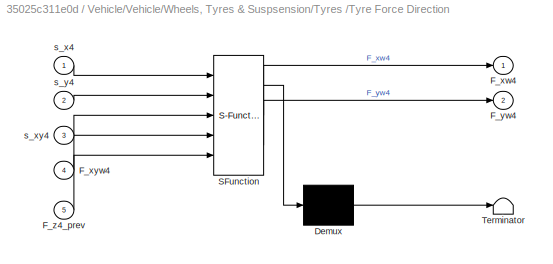
BLOCK [SubSystem] Vehicle/Vehicle/Wheels, Tyres & Suspsension/Tyres /Tyre Force Direction
  ErrorFcn = Stateflow.Translate.translate
  PermitHierarchicalResolution = ExplicitOnly
  Ports = [5, 2]
  RequestExecContextInheritance = off
  SFBlockType = MATLAB Function
BLOCK [Demux] Vehicle/Vehicle/Wheels, Tyres & Suspsension/Tyres /Tyre Force Direction/ Demux 
  Outputs = 1
  Ports = [1, 1]
BLOCK [S-Function] Vehicle/Vehicle/Wheels, Tyres & Suspsension/Tyres /Tyre Force Direction/ SFunction 
  EnableBusSupport = on
  FunctionName = sf_sfun
  Parameters = Par
  PortCounts = [5 3]
  Ports = [5, 3]
  Tag = Stateflow S-Function Modified 15
BLOCK [Terminator] Vehicle/Vehicle/Wheels, Tyres & Suspsension/Tyres /Tyre Force Direction/ Terminator 
BLOCK [Outport] Vehicle/Vehicle/Wheels, Tyres & Suspsension/Tyres /Tyre Force Direction/F_xw4
  IconDisplay = Port number
BLOCK [Inport] Vehicle/Vehicle/Wheels, Tyres & Suspsension/Tyres /Tyre Force Direction/F_xyw4
  IconDisplay = Port number
  Port = 4
BLOCK [Outport] Vehicle/Vehicle/Wheels, Tyres & Suspsension/Tyres /Tyre Force Direction/F_yw4
  IconDisplay = Port number
  Port = 2
BLOCK [Inport] Vehicle/Vehicle/Wheels, Tyres & Suspsension/Tyres /Tyre Force Direction/F_z4_prev
  IconDisplay = Port number
  Port = 5
BLOCK [Inport] Vehicle/Vehicle/Wheels, Tyres & Suspsension/Tyres /Tyre Force Direction/s_x4
  IconDisplay = Port number
BLOCK [Inport] Vehicle/Vehicle/Wheels, Tyres & Suspsension/Tyres /Tyre Force Direction/s_xy4
  IconDisplay = Port number
  Port = 3
BLOCK [Inport] Vehicle/Vehicle/Wheels, Tyres & Suspsension/Tyres /Tyre Force Direction/s_y4
  IconDisplay = Port number
  Port = 2
BLOCK [SubSystem] Vehicle/Vehicle/Wheels, Tyres & Suspsension/Tyres /Tyre Relaxation
  ErrorFcn = Stateflow.Translate.translate
  MinAlgLoopOccurrences = on
  PermitHierarchicalResolution = ExplicitOnly
  Ports = [3, 1]
  RequestExecContextInheritance = off
  SFBlockType = MATLAB Function
  TreatAsAtomicUnit = on
BLOCK [Demux] Vehicle/Vehicle/Wheels, Tyres & Suspsension/Tyres /Tyre Relaxation/ Demux 
  Outputs = 1
  Ports = [1, 1]
BLOCK [S-Function] Vehicle/Vehicle/Wheels, Tyres & Suspsension/Tyres /Tyre Relaxation/ SFunction 
  EnableBusSupport = on
  FunctionName = sf_sfun
  Parameters = Par
  PortCounts = [3 2]
  Ports = [3, 2]
  Tag = Stateflow S-Function Modified 6
BLOCK [Terminator] Vehicle/Vehicle/Wheels, Tyres & Suspsension/Tyres /Tyre Relaxation/ Terminator 
BLOCK [Inport] Vehicle/Vehicle/Wheels, Tyres & Suspsension/Tyres /Tyre Relaxation/F_xyw4
  IconDisplay = Port number
  Port = 3
BLOCK [Inport] Vehicle/Vehicle/Wheels, Tyres & Suspsension/Tyres /Tyre Relaxation/F_xywSS4
  IconDisplay = Port number
  Port = 2
BLOCK [Outport] Vehicle/Vehicle/Wheels, Tyres & Suspsension/Tyres /Tyre Relaxation/derF_xyw4
  IconDisplay = Port number
BLOCK [Inport] Vehicle/Vehicle/Wheels, Tyres & Suspsension/Tyres /Tyre Relaxation/w_4
  IconDisplay = Port number
BLOCK [SubSystem] Vehicle/Vehicle/Wheels, Tyres & Suspsension/Tyres /Tyre Slip
  ErrorFcn = Stateflow.Translate.translate
  MinAlgLoopOccurrences = on
  PermitHierarchicalResolution = ExplicitOnly
  Ports = [3, 3]
  RequestExecContextInheritance = off
  SFBlockType = MATLAB Function
  TreatAsAtomicUnit = on
BLOCK [Demux] Vehicle/Vehicle/Wheels, Tyres & Suspsension/Tyres /Tyre Slip/ Demux 
  Outputs = 1
  Ports = [1, 1]
BLOCK [S-Function] Vehicle/Vehicle/Wheels, Tyres & Suspsension/Tyres /Tyre Slip/ SFunction 
  EnableBusSupport = on
  FunctionName = sf_sfun
  Parameters = Par
  PortCounts = [3 4]
  Ports = [3, 4]
  Tag = Stateflow S-Function Modified 3
BLOCK [Terminator] Vehicle/Vehicle/Wheels, Tyres & Suspsension/Tyres /Tyre Slip/ Terminator 
BLOCK [Outport] Vehicle/Vehicle/Wheels, Tyres & Suspsension/Tyres /Tyre Slip/s_x4
  IconDisplay = Port number
BLOCK [Outport] Vehicle/Vehicle/Wheels, Tyres & Suspsension/Tyres /Tyre Slip/s_xy4
  IconDisplay = Port number
  Port = 3
BLOCK [Outport] Vehicle/Vehicle/Wheels, Tyres & Suspsension/Tyres /Tyre Slip/s_y4
  IconDisplay = Port number
  Port = 2
BLOCK [Inport] Vehicle/Vehicle/Wheels, Tyres & Suspsension/Tyres /Tyre Slip/v_xw4
  IconDisplay = Port number
  Port = 2
BLOCK [Inport] Vehicle/Vehicle/Wheels, Tyres & Suspsension/Tyres /Tyre Slip/v_yw4
  IconDisplay = Port number
  Port = 3
BLOCK [Inport] Vehicle/Vehicle/Wheels, Tyres & Suspsension/Tyres /Tyre Slip/w_4
  IconDisplay = Port number
BLOCK [SubSystem] Vehicle/Vehicle/Wheels, Tyres & Suspsension/Tyres /Tyre-Slip Force
  ErrorFcn = Stateflow.Translate.translate
  MinAlgLoopOccurrences = on
  PermitHierarchicalResolution = ExplicitOnly
  Ports = [2, 1]
  RequestExecContextInheritance = off
  SFBlockType = MATLAB Function
  TreatAsAtomicUnit = on
BLOCK [Demux] Vehicle/Vehicle/Wheels, Tyres & Suspsension/Tyres /Tyre-Slip Force/ Demux 
  Outputs = 1
  Ports = [1, 1]
BLOCK [S-Function] Vehicle/Vehicle/Wheels, Tyres & Suspsension/Tyres /Tyre-Slip Force/ SFunction 
  EnableBusSupport = on
  FunctionName = sf_sfun
  Parameters = Par
  PortCounts = [2 2]
  Ports = [2, 2]
  Tag = Stateflow S-Function Modified 4
BLOCK [Terminator] Vehicle/Vehicle/Wheels, Tyres & Suspsension/Tyres /Tyre-Slip Force/ Terminator 
BLOCK [Outport] Vehicle/Vehicle/Wheels, Tyres & Suspsension/Tyres /Tyre-Slip Force/F_xywSS4
  IconDisplay = Port number
BLOCK [Inport] Vehicle/Vehicle/Wheels, Tyres & Suspsension/Tyres /Tyre-Slip Force/F_z4
  IconDisplay = Port number
  Port = 2
BLOCK [Inport] Vehicle/Vehicle/Wheels, Tyres & Suspsension/Tyres /Tyre-Slip Force/s_xy4
  IconDisplay = Port number
BLOCK [Inport] Vehicle/Vehicle/Wheels, Tyres & Suspsension/Tyres /v_xyw8
  IconDisplay = Port number
  Port = 2
BLOCK [Inport] Vehicle/Vehicle/Wheels, Tyres & Suspsension/Tyres /w_w4
  IconDisplay = Port number
BLOCK [Outport] Vehicle/Vehicle/Wheels, Tyres & Suspsension/VehCtrlAct_w_w4
  IconDisplay = Port number
  Port = 3
BLOCK [SubSystem] Vehicle/Vehicle/Wheels, Tyres & Suspsension/Wheels 
  MinAlgLoopOccurrences = on
  Ports = [4, 1]
  RequestExecContextInheritance = off
BLOCK [BusSelector] Vehicle/Vehicle/Wheels, Tyres & Suspsension/Wheels /Bus Selector1
  OutputSignals = F_xw4,F_yw4
  Ports = [1, 2]
BLOCK [Inport] Vehicle/Vehicle/Wheels, Tyres & Suspsension/Wheels /F_xyw8
  IconDisplay = Port number
  Port = 3
BLOCK [Inport] Vehicle/Vehicle/Wheels, Tyres & Suspsension/Wheels /F_z4
  IconDisplay = Port number
  Port = 4
BLOCK [SubSystem] Vehicle/Vehicle/Wheels, Tyres & Suspsension/Wheels /INTEGRATOR
  Ports = [1, 1]
  RequestExecContextInheritance = off
BLOCK [BusCreator] Vehicle/Vehicle/Wheels, Tyres & Suspsension/Wheels /INTEGRATOR/Bus Creator1
  DisplayOption = bar
  Ports = [4, 1]
BLOCK [BusSelector] Vehicle/Vehicle/Wheels, Tyres & Suspsension/Wheels /INTEGRATOR/Bus Selector1
  OutputSignals = fl,fr,rl,rr
  Ports = [1, 4]
BLOCK [Integrator] Vehicle/Vehicle/Wheels, Tyres & Suspsension/Wheels /INTEGRATOR/Integ Whl1
  InitialCondition = Par.Init.v_x/Par.Veh.Rw
  Ports = [1, 1]
BLOCK [Integrator] Vehicle/Vehicle/Wheels, Tyres & Suspsension/Wheels /INTEGRATOR/Integ Whl2
  InitialCondition = Par.Init.v_x/Par.Veh.Rw
  Ports = [1, 1]
BLOCK [Integrator] Vehicle/Vehicle/Wheels, Tyres & Suspsension/Wheels /INTEGRATOR/Integ Whl3
  InitialCondition = Par.Init.v_x/Par.Veh.Rw
  Ports = [1, 1]
BLOCK [Integrator] Vehicle/Vehicle/Wheels, Tyres & Suspsension/Wheels /INTEGRATOR/Integ Whl4
  InitialCondition = Par.Init.v_x/Par.Veh.Rw
  Ports = [1, 1]
BLOCK [Inport] Vehicle/Vehicle/Wheels, Tyres & Suspsension/Wheels /INTEGRATOR/derw_w4
  IconDisplay = Port number
BLOCK [Outport] Vehicle/Vehicle/Wheels, Tyres & Suspsension/Wheels /INTEGRATOR/w_w4
  IconDisplay = Port number
BLOCK [Inport] Vehicle/Vehicle/Wheels, Tyres & Suspsension/Wheels /T_s4
  IconDisplay = Port number
BLOCK [Inport] Vehicle/Vehicle/Wheels, Tyres & Suspsension/Wheels /T_us4
  IconDisplay = Port number
  Port = 2
BLOCK [SubSystem] Vehicle/Vehicle/Wheels, Tyres & Suspsension/Wheels /Wheels 
  ErrorFcn = Stateflow.Translate.translate
  PermitHierarchicalResolution = ExplicitOnly
  Ports = [6, 1]
  RequestExecContextInheritance = off
  SFBlockType = MATLAB Function
  TreatAsAtomicUnit = on
BLOCK [Demux] Vehicle/Vehicle/Wheels, Tyres & Suspsension/Wheels /Wheels / Demux 
  Outputs = 1
  Ports = [1, 1]
BLOCK [S-Function] Vehicle/Vehicle/Wheels, Tyres & Suspsension/Wheels /Wheels / SFunction 
  EnableBusSupport = on
  FunctionName = sf_sfun
  Parameters = Par
  PortCounts = [6 2]
  Ports = [6, 2]
  Tag = Stateflow S-Function Modified 26
BLOCK [Terminator] Vehicle/Vehicle/Wheels, Tyres & Suspsension/Wheels /Wheels / Terminator 
BLOCK [Inport] Vehicle/Vehicle/Wheels, Tyres & Suspsension/Wheels /Wheels /F_xv4
  IconDisplay = Port number
  Port = 3
BLOCK [Inport] Vehicle/Vehicle/Wheels, Tyres & Suspsension/Wheels /Wheels /F_yv4
  IconDisplay = Port number
  Port = 4
BLOCK [Inport] Vehicle/Vehicle/Wheels, Tyres & Suspsension/Wheels /Wheels /F_z4
  IconDisplay = Port number
  Port = 5
BLOCK [Inport] Vehicle/Vehicle/Wheels, Tyres & Suspsension/Wheels /Wheels /T_s4
  IconDisplay = Port number
BLOCK [Inport] Vehicle/Vehicle/Wheels, Tyres & Suspsension/Wheels /Wheels /T_us4
  IconDisplay = Port number
  Port = 2
BLOCK [Outport] Vehicle/Vehicle/Wheels, Tyres & Suspsension/Wheels /Wheels /derw_w4
  IconDisplay = Port number
BLOCK [Inport] Vehicle/Vehicle/Wheels, Tyres & Suspsension/Wheels /Wheels /w_w4
  IconDisplay = Port number
  Port = 6
BLOCK [Outport] Vehicle/Vehicle/Wheels, Tyres & Suspsension/Wheels /w_w4
  IconDisplay = Port number
BLOCK [Inport] Vehicle/Vehicle/Wheels, Tyres & Suspsension/delta_w4
  IconDisplay = Port number
  Port = 3
BLOCK [Inport] Vehicle/Vehicle/Wheels, Tyres & Suspsension/v_xyv8
  IconDisplay = Port number
  Port = 4
BLOCK [Inport] Vehicle/Vehicle/Wheels, Tyres & Suspsension/v_z4
  IconDisplay = Port number
  Port = 5
BLOCK [Outport] Vehicle/r
  IconDisplay = Port number
  Port = 3
BLOCK [Outport] Vehicle/vx
  IconDisplay = Port number
  Port = 4
BLOCK [Outport] Vehicle/xc
  IconDisplay = Port number
BLOCK [Outport] Vehicle/yc
  IconDisplay = Port number
  Port = 2
BLOCK [ToWorkspace] ws1
  FixptAsFi = on
  MaxDataPoints = inf
  Ports = [1]
  SampleTime = -1
  Save2DSignal = 3-D array (concatenate along third dimension)
  VariableName = rel_pos
BLOCK [ToWorkspace] ws2
  FixptAsFi = on
  MaxDataPoints = inf
  Ports = [1]
  SampleTime = -1
  Save2DSignal = 3-D array (concatenate along third dimension)
  VariableName = ydc
BLOCK [ToWorkspace] ws3
  FixptAsFi = on
  MaxDataPoints = inf
  Ports = [1]
  SampleTime = -1
  Save2DSignal = 3-D array (concatenate along third dimension)
  VariableName = t
BLOCK [ToWorkspace] ws5
  FixptAsFi = on
  MaxDataPoints = inf
  Ports = [1]
  SampleTime = -1
  Save2DSignal = 3-D array (concatenate along third dimension)
  VariableName = xdc
BLOCK [ToWorkspace] ws6
  FixptAsFi = on
  MaxDataPoints = inf
  Ports = [1]
  SampleTime = -1
  Save2DSignal = 3-D array (concatenate along third dimension)
  VariableName = yref
BLOCK [Constant] xdref
  Value = 70/3.6
BLOCK [Constant] xdref2
  Value = 0
BLOCK [SubSystem] y   dotref
  ClipboardFcn = sigbuilder_block('clipboard');
  CloseFcn = sigbuilder_block('close');
  ContinueFcn = sigbuilder_block('continue');
  CopyFcn = sigbuilder_block('copy');
  DeleteFcn = sigbuilder_block('delete');
  LoadFcn = sigbuilder_block('load');
  MaskHideContents = on
  ModelCloseFcn = sigbuilder_block('modelClose');
  NameChangeFcn = sigbuilder_block('namechange');
  OpenFcn = sigbuilder_block('open',[437.6 199.2 550.4 400 ]);
  PauseFcn = sigbuilder_block('pause');
  Ports = [0, 1]
  PreSaveFcn = sigbuilder_block('preSave');
  RequestExecContextInheritance = off
  StartFcn = sigbuilder_block('start');
  StopFcn = sigbuilder_block('stop');
  Tag = STV Subsys
BLOCK [Demux] y   dotref/Demux
  Outputs = 1
  Ports = [1, 1]
  Tag = STV Demux
BLOCK [FromWorkspace] y   dotref/FromWs
  SampleTime = 0
  Tag = STV FromWs
  VariableName = tuvar
  ZeroCross = on
BLOCK [Outport] y   dotref/Signal 3
  IconDisplay = Port number
  Tag = STV Outport
BLOCK [SubSystem] ydotref1
  ClipboardFcn = sigbuilder_block('clipboard');
  CloseFcn = sigbuilder_block('close');
  ContinueFcn = sigbuilder_block('continue');
  CopyFcn = sigbuilder_block('copy');
  DeleteFcn = sigbuilder_block('delete');
  LoadFcn = sigbuilder_block('load');
  MaskHideContents = on
  ModelCloseFcn = sigbuilder_block('modelClose');
  NameChangeFcn = sigbuilder_block('namechange');
  OpenFcn = sigbuilder_block('open',[437.6 199.2 550.4 400 ]);
  PauseFcn = sigbuilder_block('pause');
  Ports = [0, 1]
  PreSaveFcn = sigbuilder_block('preSave');
  RequestExecContextInheritance = off
  StartFcn = sigbuilder_block('start');
  StopFcn = sigbuilder_block('stop');
  Tag = STV Subsys
BLOCK [Demux] ydotref1/Demux
  Outputs = 1
  Ports = [1, 1]
  Tag = STV Demux
BLOCK [FromWorkspace] ydotref1/FromWs
  SampleTime = 0
  Tag = STV FromWs
  VariableName = tuvar
  ZeroCross = on
BLOCK [Outport] ydotref1/Signal 3
  IconDisplay = Port number
  Tag = STV Outport
ANNOTATION Vehicle/Vehicle: "1" is for forward direction
ANNOTATION Vehicle/Vehicle/Vehicle Motion: "Sprung Body OORP" could also output pos_oorp3 by integrating v_oorp3.
LINE Clock:1 -> ws3:1
NET Controller/Cartesian controller/Divide1:1 -> Controller/Cartesian controller/S4:1, Controller/Cartesian controller/vx_ref:1
LINE Controller/Cartesian controller/Divide:1 -> Controller/Cartesian controller/Sat1:1
LINE Controller/Cartesian controller/Sat1:1 -> Controller/Cartesian controller/TF1:1
LINE Controller/Cartesian controller/TF1:1 -> Controller/Cartesian controller/r_ref:1
LINE Controller/Cartesian controller/TF2:1 -> Controller/Cartesian controller/Divide1:2
LINE Controller/Cartesian controller/r_in:1 -> Controller/Cartesian controller/TF2:1
LINE Controller/Cartesian controller/vx_in:1 -> Controller/Cartesian controller/Divide:2
LINE Controller/Cartesian controller/xcd_ref:1 -> Controller/Cartesian controller/Divide1:1
LINE Controller/Cartesian controller/ycd_ref:1 -> Controller/Cartesian controller/Divide:1
LINE Controller/Cartesian controller:1 -> Controller/Velocity and angle controller:2
LINE Controller/Cartesian controller:2 -> Controller/Velocity and angle controller:3
NET Controller/PID2:1 -> Controller/Cartesian controller:4, Controller/ws5:1
LINE Controller/Velocity and angle controller/PID2:1 -> Controller/Velocity and angle controller/Subsystem:2
LINE Controller/Velocity and angle controller/PID3:1 -> Controller/Velocity and angle controller/Subsystem:1
NET Controller/Velocity and angle controller/Subsystem/Acc:1 -> Controller/Velocity and angle controller/Subsystem/Sat2:1, Controller/Velocity and angle controller/Subsystem/Sat3:1
LINE Controller/Velocity and angle controller/Subsystem/Gain:1 -> Controller/Velocity and angle controller/Subsystem/Sat1:1
LINE Controller/Velocity and angle controller/Subsystem/Sat1:1 -> Controller/Velocity and angle controller/Subsystem/SOut:1
LINE Controller/Velocity and angle controller/Subsystem/Sat2:1 -> Controller/Velocity and angle controller/Subsystem/Bout:1
LINE Controller/Velocity and angle controller/Subsystem/Sat3:1 -> Controller/Velocity and angle controller/Subsystem/Aout:1
LINE Controller/Velocity and angle controller/Subsystem/Steer:1 -> Controller/Velocity and angle controller/Subsystem/Gain:1
NET Controller/Velocity and angle controller/Subsystem:1 -> Controller/Velocity and angle controller/Aout:1, Controller/Velocity and angle controller/S1:1
NET Controller/Velocity and angle controller/Subsystem:2 -> Controller/Velocity and angle controller/Bout:1, Controller/Velocity and angle controller/S2:1
LINE Controller/Velocity and angle controller/Subsystem:3 -> Controller/Velocity and angle controller/Sout:1
LINE Controller/Velocity and angle controller/Sum1:1 -> Controller/Velocity and angle controller/PID2:1
LINE Controller/Velocity and angle controller/Sum2:1 -> Controller/Velocity and angle controller/PID3:1
LINE Controller/Velocity and angle controller/r_in:1 -> Controller/Velocity and angle controller/Sum1:2
LINE Controller/Velocity and angle controller/r_ref:1 -> Controller/Velocity and angle controller/Sum1:1
LINE Controller/Velocity and angle controller/vx_in:1 -> Controller/Velocity and angle controller/Sum2:1
LINE Controller/Velocity and angle controller/vx_ref:1 -> Controller/Velocity and angle controller/Sum2:2
LINE Controller/Velocity and angle controller:1 -> Controller/Aout:1
LINE Controller/Velocity and angle controller:2 -> Controller/Bout:1
LINE Controller/Velocity and angle controller:3 -> Controller/Sout:1
NET Controller/r_in:1 -> Controller/Cartesian controller:3, Controller/Velocity and angle controller:4
NET Controller/vx_in:1 -> Controller/Cartesian controller:1, Controller/Velocity and angle controller:1
LINE Controller/xd_ref:1 -> Controller/Cartesian controller:2
LINE Controller/y_error:1 -> Controller/PID2:1
LINE Controller:1 -> Vehicle:1
LINE Controller:2 -> Vehicle:2
LINE Controller:3 -> Vehicle:3
NET D1:1 -> G2:1, ws5:1
LINE D2:1 -> ws2:1
LINE F2:1 -> Sum:2
LINE F3:1 -> Path generation:3
LINE F5:1 -> Path generation:2
LINE F:1 -> Controller:1
LINE From1:1 -> Path generation:1
LINE From2:1 -> Controller:4
LINE From3:1 -> MATLAB Function:1
LINE From4:1 -> Gain:1
LINE From:1 -> Sum1:1
LINE Gain:1 -> Sum2:1
NET Lead car/Integrator:1 -> Lead car/ws8:1, Lead car/x_pos:1
LINE Lead car/xdref1:1 -> Lead car/Integrator:1
LINE Lead car:1 -> Sum1:2
LINE Mux2:1 -> S8:1
NET PG:1 -> Path generation:trigger, S2:1
NET Path generation/Generate XSP:1 -> Path generation/Mux1:1, Path generation/WS1:1
NET Path generation/MPC algorithm:1 -> Path generation/Select element in ref:1, Path generation/WS3:1
LINE Path generation/Mux1:1 -> Path generation/MPC algorithm:1
LINE Path generation/Mux:1 -> Path generation/Mux1:2
LINE Path generation/RelPos:1 -> Path generation/Generate XSP:1
LINE Path generation/Select element in ref:1 -> Path generation/Yref:1
LINE Path generation/xDot:1 -> Path generation/Mux:1
NET Path generation/y:1 -> Path generation/Mux:2, Path generation/WS2:1, Path generation/y_samp:1
NET Path generation:1 -> Goto:1, Mux2:1
LINE Path generation:2 -> Mux2:2
NET Sum1:1 -> G4:1, S6:1, ws1:1
NET Sum2:1 -> Sum:1, ws6:1
LINE Sum:1 -> Controller:3
LINE Vehicle/APed:1 -> Vehicle/Vehicle:1
LINE Vehicle/BPed:1 -> Vehicle/Vehicle:2
LINE Vehicle/Bus Selector1:1 -> Vehicle/xc:1
LINE Vehicle/Bus Selector1:2 -> Vehicle/yc:1
LINE Vehicle/Bus Selector1:3 -> Vehicle/r:1
LINE Vehicle/Bus Selector6:1 -> Vehicle/vx:1
LINE Vehicle/Bus Selector6:2 -> Vehicle/T1:1
LINE Vehicle/Bus Selector6:3 -> Vehicle/T2:1
LINE Vehicle/SteWhlAn:1 -> Vehicle/Vehicle:3
LINE Vehicle/Vehicle/APed:1 -> Vehicle/Vehicle/Vehicle Control & Actuators:1
LINE Vehicle/Vehicle/BPed:1 -> Vehicle/Vehicle/Vehicle Control & Actuators:2
LINE Vehicle/Vehicle/Bus Creator:1 -> Vehicle/Vehicle/Vehicle Control & Actuators:5
LINE Vehicle/Vehicle/Bus Selector1:1 -> Vehicle/Vehicle/Drvr_v_irp3:1
LINE Vehicle/Vehicle/Bus Selector:1 -> Vehicle/Vehicle/Env_pos_irp3:1
LINE Vehicle/Vehicle/C2:1 -> Vehicle/Vehicle/Vehicle Control & Actuators:4
LINE Vehicle/Vehicle/SteWhlAn:1 -> Vehicle/Vehicle/Vehicle Control & Actuators:3
LINE Vehicle/Vehicle/Vehicle Control & Actuators/APed:1 -> Vehicle/Vehicle/Vehicle Control & Actuators/vehicle control & actuators:1
LINE Vehicle/Vehicle/Vehicle Control & Actuators/BPed:1 -> Vehicle/Vehicle/Vehicle Control & Actuators/vehicle control & actuators:2
LINE Vehicle/Vehicle/Vehicle Control & Actuators/Bus Selector4:1 -> Vehicle/Vehicle/Vehicle Control & Actuators/vehicle control & actuators:5
LINE Vehicle/Vehicle/Vehicle Control & Actuators/LongDir:1 -> Vehicle/Vehicle/Vehicle Control & Actuators/vehicle control & actuators:4
LINE Vehicle/Vehicle/Vehicle Control & Actuators/Memory1:1 -> Vehicle/Vehicle/Vehicle Control & Actuators/Bus Selector4:1
LINE Vehicle/Vehicle/Vehicle Control & Actuators/SteWhlAn:1 -> Vehicle/Vehicle/Vehicle Control & Actuators/vehicle control & actuators:3
LINE Vehicle/Vehicle/Vehicle Control & Actuators/VehCtrlAct_bus:1 -> Vehicle/Vehicle/Vehicle Control & Actuators/Memory1:1
LINE Vehicle/Vehicle/Vehicle Control & Actuators/vehicle control & actuators:1 -> Vehicle/Vehicle/Vehicle Control & Actuators/T_s4:1
LINE Vehicle/Vehicle/Vehicle Control & Actuators/vehicle control & actuators:2 -> Vehicle/Vehicle/Vehicle Control & Actuators/T_us4:1
LINE Vehicle/Vehicle/Vehicle Control & Actuators/vehicle control & actuators:3 -> Vehicle/Vehicle/Vehicle Control & Actuators/delta_w4:1
LINE Vehicle/Vehicle/Vehicle Control & Actuators:1 -> Vehicle/Vehicle/Wheels, Tyres & Suspsension:1
LINE Vehicle/Vehicle/Vehicle Control & Actuators:2 -> Vehicle/Vehicle/Wheels, Tyres & Suspsension:2
LINE Vehicle/Vehicle/Vehicle Control & Actuators:3 -> Vehicle/Vehicle/Wheels, Tyres & Suspsension:3
LINE Vehicle/Vehicle/Vehicle Motion/Compatibility IRP/Bus Creator3:1 -> Vehicle/Vehicle/Vehicle Motion/Compatibility IRP/v_xyv8:1
LINE Vehicle/Vehicle/Vehicle Motion/Compatibility IRP/Compatibility:1 -> Vehicle/Vehicle/Vehicle Motion/Compatibility IRP/Bus Creator3:1
LINE Vehicle/Vehicle/Vehicle Motion/Compatibility IRP/Compatibility:2 -> Vehicle/Vehicle/Vehicle Motion/Compatibility IRP/Bus Creator3:2
LINE Vehicle/Vehicle/Vehicle Motion/Compatibility IRP/v_irp3:1 -> Vehicle/Vehicle/Vehicle Motion/Compatibility IRP/Compatibility:1
LINE Vehicle/Vehicle/Vehicle Motion/Compatibility IRP:1 -> Vehicle/Vehicle/Vehicle Motion/v_xyv8:1
LINE Vehicle/Vehicle/Vehicle Motion/Compatibility OORP/Compatibility Eq [1.11]:1 -> Vehicle/Vehicle/Vehicle Motion/Compatibility OORP/v_z4:1
LINE Vehicle/Vehicle/Vehicle Motion/Compatibility OORP/v_oorp3:1 -> Vehicle/Vehicle/Vehicle Motion/Compatibility OORP/Compatibility Eq [1.11]:1
LINE Vehicle/Vehicle/Vehicle Motion/Compatibility OORP:1 -> Vehicle/Vehicle/Vehicle Motion/v_z4:1
NET Vehicle/Vehicle/Vehicle Motion/F_xyv8:1 -> Vehicle/Vehicle/Vehicle Motion/Sprung Body OORP:1, Vehicle/Vehicle/Vehicle Motion/Whole Vehicle IRP:1
LINE Vehicle/Vehicle/Vehicle Motion/F_z4:1 -> Vehicle/Vehicle/Vehicle Motion/Sprung Body OORP:2
LINE Vehicle/Vehicle/Vehicle Motion/Sprung Body OORP/Body OORP:1 -> Vehicle/Vehicle/Vehicle Motion/Sprung Body OORP/Integrator:1
LINE Vehicle/Vehicle/Vehicle Motion/Sprung Body OORP/Bus Selector1:1 -> Vehicle/Vehicle/Vehicle Motion/Sprung Body OORP/Body OORP:1
LINE Vehicle/Vehicle/Vehicle Motion/Sprung Body OORP/Bus Selector1:2 -> Vehicle/Vehicle/Vehicle Motion/Sprung Body OORP/Body OORP:2
LINE Vehicle/Vehicle/Vehicle Motion/Sprung Body OORP/F_xyv8:1 -> Vehicle/Vehicle/Vehicle Motion/Sprung Body OORP/Bus Selector1:1
LINE Vehicle/Vehicle/Vehicle Motion/Sprung Body OORP/F_z4:1 -> Vehicle/Vehicle/Vehicle Motion/Sprung Body OORP/Body OORP:3
LINE Vehicle/Vehicle/Vehicle Motion/Sprung Body OORP/Integrator/Bus Creator:1 -> Vehicle/Vehicle/Vehicle Motion/Sprung Body OORP/Integrator/v_oorp3:1
LINE Vehicle/Vehicle/Vehicle Motion/Sprung Body OORP/Integrator/Bus Selector4:1 -> Vehicle/Vehicle/Vehicle Motion/Sprung Body OORP/Integrator/Integ Heave:1
LINE Vehicle/Vehicle/Vehicle Motion/Sprung Body OORP/Integrator/Bus Selector4:2 -> Vehicle/Vehicle/Vehicle Motion/Sprung Body OORP/Integrator/Integ Roll:1
LINE Vehicle/Vehicle/Vehicle Motion/Sprung Body OORP/Integrator/Bus Selector4:3 -> Vehicle/Vehicle/Vehicle Motion/Sprung Body OORP/Integrator/Integ Pitch:1
LINE Vehicle/Vehicle/Vehicle Motion/Sprung Body OORP/Integrator/Integ Heave:1 -> Vehicle/Vehicle/Vehicle Motion/Sprung Body OORP/Integrator/Bus Creator:1
LINE Vehicle/Vehicle/Vehicle Motion/Sprung Body OORP/Integrator/Integ Pitch:1 -> Vehicle/Vehicle/Vehicle Motion/Sprung Body OORP/Integrator/Bus Creator:3
LINE Vehicle/Vehicle/Vehicle Motion/Sprung Body OORP/Integrator/Integ Roll:1 -> Vehicle/Vehicle/Vehicle Motion/Sprung Body OORP/Integrator/Bus Creator:2
LINE Vehicle/Vehicle/Vehicle Motion/Sprung Body OORP/Integrator/derv_z:1 -> Vehicle/Vehicle/Vehicle Motion/Sprung Body OORP/Integrator/Bus Selector4:1
LINE Vehicle/Vehicle/Vehicle Motion/Sprung Body OORP/Integrator:1 -> Vehicle/Vehicle/Vehicle Motion/Sprung Body OORP/v_oorp3:1
LINE Vehicle/Vehicle/Vehicle Motion/Sprung Body OORP:1 -> Vehicle/Vehicle/Vehicle Motion/Compatibility OORP:1
LINE Vehicle/Vehicle/Vehicle Motion/Whole Vehicle IRP/Bus Creator2:1 -> Vehicle/Vehicle/Vehicle Motion/Whole Vehicle IRP/To Workspace2:1
LINE Vehicle/Vehicle/Vehicle Motion/Whole Vehicle IRP/Bus Selector1:1 -> Vehicle/Vehicle/Vehicle Motion/Whole Vehicle IRP/Vehicle Velocity in-road-plane:1
LINE Vehicle/Vehicle/Vehicle Motion/Whole Vehicle IRP/Bus Selector1:2 -> Vehicle/Vehicle/Vehicle Motion/Whole Vehicle IRP/Vehicle Velocity in-road-plane:2
LINE Vehicle/Vehicle/Vehicle Motion/Whole Vehicle IRP/Bus Selector5:1 -> Vehicle/Vehicle/Vehicle Motion/Whole Vehicle IRP/Sum2:2
LINE Vehicle/Vehicle/Vehicle Motion/Whole Vehicle IRP/Bus Selector5:2 -> Vehicle/Vehicle/Vehicle Motion/Whole Vehicle IRP/Sum1:2
LINE Vehicle/Vehicle/Vehicle Motion/Whole Vehicle IRP/Bus Selector5:3 -> Vehicle/Vehicle/Vehicle Motion/Whole Vehicle IRP/Bus Creator2:3
LINE Vehicle/Vehicle/Vehicle Motion/Whole Vehicle IRP/Bus Selector6:1 -> Vehicle/Vehicle/Vehicle Motion/Whole Vehicle IRP/Product1:1
LINE Vehicle/Vehicle/Vehicle Motion/Whole Vehicle IRP/Bus Selector6:2 -> Vehicle/Vehicle/Vehicle Motion/Whole Vehicle IRP/Product2:1
NET Vehicle/Vehicle/Vehicle Motion/Whole Vehicle IRP/Bus Selector6:3 -> Vehicle/Vehicle/Vehicle Motion/Whole Vehicle IRP/Product1:2, Vehicle/Vehicle/Vehicle Motion/Whole Vehicle IRP/Product2:2
LINE Vehicle/Vehicle/Vehicle Motion/Whole Vehicle IRP/F_xyv8:1 -> Vehicle/Vehicle/Vehicle Motion/Whole Vehicle IRP/Bus Selector1:1
LINE Vehicle/Vehicle/Vehicle Motion/Whole Vehicle IRP/INTEGRATOR Vehicle velocity irp/Bus Creator:1 -> Vehicle/Vehicle/Vehicle Motion/Whole Vehicle IRP/INTEGRATOR Vehicle velocity irp/v_irp3:1
LINE Vehicle/Vehicle/Vehicle Motion/Whole Vehicle IRP/INTEGRATOR Vehicle velocity irp/Bus Selector:1 -> Vehicle/Vehicle/Vehicle Motion/Whole Vehicle IRP/INTEGRATOR Vehicle velocity irp/Integ Long:1
LINE Vehicle/Vehicle/Vehicle Motion/Whole Vehicle IRP/INTEGRATOR Vehicle velocity irp/Bus Selector:2 -> Vehicle/Vehicle/Vehicle Motion/Whole Vehicle IRP/INTEGRATOR Vehicle velocity irp/Integ Lat:1
LINE Vehicle/Vehicle/Vehicle Motion/Whole Vehicle IRP/INTEGRATOR Vehicle velocity irp/Bus Selector:3 -> Vehicle/Vehicle/Vehicle Motion/Whole Vehicle IRP/INTEGRATOR Vehicle velocity irp/Integ Yaw:1
LINE Vehicle/Vehicle/Vehicle Motion/Whole Vehicle IRP/INTEGRATOR Vehicle velocity irp/Integ Lat:1 -> Vehicle/Vehicle/Vehicle Motion/Whole Vehicle IRP/INTEGRATOR Vehicle velocity irp/Bus Creator:2
LINE Vehicle/Vehicle/Vehicle Motion/Whole Vehicle IRP/INTEGRATOR Vehicle velocity irp/Integ Long:1 -> Vehicle/Vehicle/Vehicle Motion/Whole Vehicle IRP/INTEGRATOR Vehicle velocity irp/Bus Creator:1
LINE Vehicle/Vehicle/Vehicle Motion/Whole Vehicle IRP/INTEGRATOR Vehicle velocity irp/Integ Yaw:1 -> Vehicle/Vehicle/Vehicle Motion/Whole Vehicle IRP/INTEGRATOR Vehicle velocity irp/Bus Creator:3
LINE Vehicle/Vehicle/Vehicle Motion/Whole Vehicle IRP/INTEGRATOR Vehicle velocity irp/derv_irp3:1 -> Vehicle/Vehicle/Vehicle Motion/Whole Vehicle IRP/INTEGRATOR Vehicle velocity irp/Bus Selector:1
NET Vehicle/Vehicle/Vehicle Motion/Whole Vehicle IRP/INTEGRATOR Vehicle velocity irp:1 -> Vehicle/Vehicle/Vehicle Motion/Whole Vehicle IRP/Bus Selector6:1, Vehicle/Vehicle/Vehicle Motion/Whole Vehicle IRP/To Workspace1:1, Vehicle/Vehicle/Vehicle Motion/Whole Vehicle IRP/Vehicle Position in-road-plane:1, Vehicle/Vehicle/Vehicle Motion/Whole Vehicle IRP/Vehicle Velocity in-road-plane:3, Vehicle/Vehicle/Vehicle Motion/Whole Vehicle IRP/v_irp3:1
LINE Vehicle/Vehicle/Vehicle Motion/Whole Vehicle IRP/INTEGRATOR vehicle position irp/Bus Creator3:1 -> Vehicle/Vehicle/Vehicle Motion/Whole Vehicle IRP/INTEGRATOR vehicle position irp/pos_irp3:1
LINE Vehicle/Vehicle/Vehicle Motion/Whole Vehicle IRP/INTEGRATOR vehicle position irp/Bus Selector2:1 -> Vehicle/Vehicle/Vehicle Motion/Whole Vehicle IRP/INTEGRATOR vehicle position irp/Integ x:1
LINE Vehicle/Vehicle/Vehicle Motion/Whole Vehicle IRP/INTEGRATOR vehicle position irp/Bus Selector2:2 -> Vehicle/Vehicle/Vehicle Motion/Whole Vehicle IRP/INTEGRATOR vehicle position irp/Integ y:1
LINE Vehicle/Vehicle/Vehicle Motion/Whole Vehicle IRP/INTEGRATOR vehicle position irp/Bus Selector2:3 -> Vehicle/Vehicle/Vehicle Motion/Whole Vehicle IRP/INTEGRATOR vehicle position irp/Integ p_z:1
NET Vehicle/Vehicle/Vehicle Motion/Whole Vehicle IRP/INTEGRATOR vehicle position irp/Integ p_z:1 -> Vehicle/Vehicle/Vehicle Motion/Whole Vehicle IRP/INTEGRATOR vehicle position irp/Bus Creator3:3, Vehicle/Vehicle/Vehicle Motion/Whole Vehicle IRP/INTEGRATOR vehicle position irp/rotz:1
LINE Vehicle/Vehicle/Vehicle Motion/Whole Vehicle IRP/INTEGRATOR vehicle position irp/Integ x:1 -> Vehicle/Vehicle/Vehicle Motion/Whole Vehicle IRP/INTEGRATOR vehicle position irp/Bus Creator3:1
LINE Vehicle/Vehicle/Vehicle Motion/Whole Vehicle IRP/INTEGRATOR vehicle position irp/Integ y:1 -> Vehicle/Vehicle/Vehicle Motion/Whole Vehicle IRP/INTEGRATOR vehicle position irp/Bus Creator3:2
LINE Vehicle/Vehicle/Vehicle Motion/Whole Vehicle IRP/INTEGRATOR vehicle position irp/derpos_irp3:1 -> Vehicle/Vehicle/Vehicle Motion/Whole Vehicle IRP/INTEGRATOR vehicle position irp/Bus Selector2:1
NET Vehicle/Vehicle/Vehicle Motion/Whole Vehicle IRP/INTEGRATOR vehicle position irp:1 -> Vehicle/Vehicle/Vehicle Motion/Whole Vehicle IRP/To Workspace:1, Vehicle/Vehicle/Vehicle Motion/Whole Vehicle IRP/pos_irp3:1
LINE Vehicle/Vehicle/Vehicle Motion/Whole Vehicle IRP/INTEGRATOR vehicle position irp:2 -> Vehicle/Vehicle/Vehicle Motion/Whole Vehicle IRP/Vehicle Position in-road-plane:2
LINE Vehicle/Vehicle/Vehicle Motion/Whole Vehicle IRP/Product1:1 -> Vehicle/Vehicle/Vehicle Motion/Whole Vehicle IRP/Sum1:1
LINE Vehicle/Vehicle/Vehicle Motion/Whole Vehicle IRP/Product2:1 -> Vehicle/Vehicle/Vehicle Motion/Whole Vehicle IRP/Sum2:1
LINE Vehicle/Vehicle/Vehicle Motion/Whole Vehicle IRP/Sum1:1 -> Vehicle/Vehicle/Vehicle Motion/Whole Vehicle IRP/Bus Creator2:2
LINE Vehicle/Vehicle/Vehicle Motion/Whole Vehicle IRP/Sum2:1 -> Vehicle/Vehicle/Vehicle Motion/Whole Vehicle IRP/Bus Creator2:1
LINE Vehicle/Vehicle/Vehicle Motion/Whole Vehicle IRP/Vehicle Position in-road-plane:1 -> Vehicle/Vehicle/Vehicle Motion/Whole Vehicle IRP/INTEGRATOR vehicle position irp:1
NET Vehicle/Vehicle/Vehicle Motion/Whole Vehicle IRP/Vehicle Velocity in-road-plane:1 -> Vehicle/Vehicle/Vehicle Motion/Whole Vehicle IRP/Bus Selector5:1, Vehicle/Vehicle/Vehicle Motion/Whole Vehicle IRP/INTEGRATOR Vehicle velocity irp:1
NET Vehicle/Vehicle/Vehicle Motion/Whole Vehicle IRP:1 -> Vehicle/Vehicle/Vehicle Motion/Compatibility IRP:1, Vehicle/Vehicle/Vehicle Motion/v_irp3:1
LINE Vehicle/Vehicle/Vehicle Motion/Whole Vehicle IRP:2 -> Vehicle/Vehicle/Vehicle Motion/pos_irp3:1
LINE Vehicle/Vehicle/Vehicle Motion:1 -> Vehicle/Vehicle/Wheels, Tyres & Suspsension:4
LINE Vehicle/Vehicle/Vehicle Motion:2 -> Vehicle/Vehicle/Bus Selector:1
LINE Vehicle/Vehicle/Vehicle Motion:3 -> Vehicle/Vehicle/Wheels, Tyres & Suspsension:5
NET Vehicle/Vehicle/Vehicle Motion:4 -> Vehicle/Vehicle/Bus Creator:1, Vehicle/Vehicle/Bus Selector1:1
LINE Vehicle/Vehicle/Wheels, Tyres & Suspsension/Bus Creator:1 -> Vehicle/Vehicle/Wheels, Tyres & Suspsension/VehCtrlAct_w_w4:1
LINE Vehicle/Vehicle/Wheels, Tyres & Suspsension/Coord Transf to Vehicle/Bus Creator3:1 -> Vehicle/Vehicle/Wheels, Tyres & Suspsension/Coord Transf to Vehicle/F_xyv8:1
LINE Vehicle/Vehicle/Wheels, Tyres & Suspsension/Coord Transf to Vehicle/Bus Selector1:1 -> Vehicle/Vehicle/Wheels, Tyres & Suspsension/Coord Transf to Vehicle/Coord Transf to veh:1
LINE Vehicle/Vehicle/Wheels, Tyres & Suspsension/Coord Transf to Vehicle/Bus Selector1:2 -> Vehicle/Vehicle/Wheels, Tyres & Suspsension/Coord Transf to Vehicle/Coord Transf to veh:2
LINE Vehicle/Vehicle/Wheels, Tyres & Suspsension/Coord Transf to Vehicle/Coord Transf to veh:1 -> Vehicle/Vehicle/Wheels, Tyres & Suspsension/Coord Transf to Vehicle/Bus Creator3:1
LINE Vehicle/Vehicle/Wheels, Tyres & Suspsension/Coord Transf to Vehicle/Coord Transf to veh:2 -> Vehicle/Vehicle/Wheels, Tyres & Suspsension/Coord Transf to Vehicle/Bus Creator3:2
LINE Vehicle/Vehicle/Wheels, Tyres & Suspsension/Coord Transf to Vehicle/F_xyw8:1 -> Vehicle/Vehicle/Wheels, Tyres & Suspsension/Coord Transf to Vehicle/Bus Selector1:1
LINE Vehicle/Vehicle/Wheels, Tyres & Suspsension/Coord Transf to Vehicle/delta_w4:1 -> Vehicle/Vehicle/Wheels, Tyres & Suspsension/Coord Transf to Vehicle/Coord Transf to veh:3
NET Vehicle/Vehicle/Wheels, Tyres & Suspsension/Coord Transf to Vehicle:1 -> Vehicle/Vehicle/Wheels, Tyres & Suspsension/F_xyv8:1, Vehicle/Vehicle/Wheels, Tyres & Suspsension/Springs, Dampers & Linkage:3
LINE Vehicle/Vehicle/Wheels, Tyres & Suspsension/Coord Transf to Wheels /Bus Creator4:1 -> Vehicle/Vehicle/Wheels, Tyres & Suspsension/Coord Transf to Wheels /v_xyw8:1
LINE Vehicle/Vehicle/Wheels, Tyres & Suspsension/Coord Transf to Wheels /Bus Selector:1 -> Vehicle/Vehicle/Wheels, Tyres & Suspsension/Coord Transf to Wheels /Coord Transf to whl:1
LINE Vehicle/Vehicle/Wheels, Tyres & Suspsension/Coord Transf to Wheels /Bus Selector:2 -> Vehicle/Vehicle/Wheels, Tyres & Suspsension/Coord Transf to Wheels /Coord Transf to whl:2
LINE Vehicle/Vehicle/Wheels, Tyres & Suspsension/Coord Transf to Wheels /Coord Transf to whl:1 -> Vehicle/Vehicle/Wheels, Tyres & Suspsension/Coord Transf to Wheels /Bus Creator4:1
LINE Vehicle/Vehicle/Wheels, Tyres & Suspsension/Coord Transf to Wheels /Coord Transf to whl:2 -> Vehicle/Vehicle/Wheels, Tyres & Suspsension/Coord Transf to Wheels /Bus Creator4:2
LINE Vehicle/Vehicle/Wheels, Tyres & Suspsension/Coord Transf to Wheels /delta_w4:1 -> Vehicle/Vehicle/Wheels, Tyres & Suspsension/Coord Transf to Wheels /Coord Transf to whl:3
LINE Vehicle/Vehicle/Wheels, Tyres & Suspsension/Coord Transf to Wheels /v_xyv8:1 -> Vehicle/Vehicle/Wheels, Tyres & Suspsension/Coord Transf to Wheels /Bus Selector:1
LINE Vehicle/Vehicle/Wheels, Tyres & Suspsension/Coord Transf to Wheels :1 -> Vehicle/Vehicle/Wheels, Tyres & Suspsension/Tyres :2
LINE Vehicle/Vehicle/Wheels, Tyres & Suspsension/From:1 -> Vehicle/Vehicle/Wheels, Tyres & Suspsension/Bus Creator:1
LINE Vehicle/Vehicle/Wheels, Tyres & Suspsension/Springs, Dampers & Linkage/Bus Selector1:1 -> Vehicle/Vehicle/Wheels, Tyres & Suspsension/Springs, Dampers & Linkage/Suspension Equilibrium:3
LINE Vehicle/Vehicle/Wheels, Tyres & Suspsension/Springs, Dampers & Linkage/Bus Selector1:2 -> Vehicle/Vehicle/Wheels, Tyres & Suspsension/Springs, Dampers & Linkage/Suspension Equilibrium:4
LINE Vehicle/Vehicle/Wheels, Tyres & Suspsension/Springs, Dampers & Linkage/Dampers:1 -> Vehicle/Vehicle/Wheels, Tyres & Suspsension/Springs, Dampers & Linkage/Sum:2
LINE Vehicle/Vehicle/Wheels, Tyres & Suspsension/Springs, Dampers & Linkage/F_xyv8:1 -> Vehicle/Vehicle/Wheels, Tyres & Suspsension/Springs, Dampers & Linkage/Bus Selector1:1
LINE Vehicle/Vehicle/Wheels, Tyres & Suspsension/Springs, Dampers & Linkage/INTEGRATOR/Bus Creator3:1 -> Vehicle/Vehicle/Wheels, Tyres & Suspsension/Springs, Dampers & Linkage/INTEGRATOR/F_4:1
LINE Vehicle/Vehicle/Wheels, Tyres & Suspsension/Springs, Dampers & Linkage/INTEGRATOR/Bus Selector7:1 -> Vehicle/Vehicle/Wheels, Tyres & Suspsension/Springs, Dampers & Linkage/INTEGRATOR/Integrator1:1
LINE Vehicle/Vehicle/Wheels, Tyres & Suspsension/Springs, Dampers & Linkage/INTEGRATOR/Bus Selector7:2 -> Vehicle/Vehicle/Wheels, Tyres & Suspsension/Springs, Dampers & Linkage/INTEGRATOR/Integrator2:1
LINE Vehicle/Vehicle/Wheels, Tyres & Suspsension/Springs, Dampers & Linkage/INTEGRATOR/Bus Selector7:3 -> Vehicle/Vehicle/Wheels, Tyres & Suspsension/Springs, Dampers & Linkage/INTEGRATOR/Integrator3:1
LINE Vehicle/Vehicle/Wheels, Tyres & Suspsension/Springs, Dampers & Linkage/INTEGRATOR/Bus Selector7:4 -> Vehicle/Vehicle/Wheels, Tyres & Suspsension/Springs, Dampers & Linkage/INTEGRATOR/Integrator4:1
LINE Vehicle/Vehicle/Wheels, Tyres & Suspsension/Springs, Dampers & Linkage/INTEGRATOR/Integrator1:1 -> Vehicle/Vehicle/Wheels, Tyres & Suspsension/Springs, Dampers & Linkage/INTEGRATOR/Bus Creator3:1
LINE Vehicle/Vehicle/Wheels, Tyres & Suspsension/Springs, Dampers & Linkage/INTEGRATOR/Integrator2:1 -> Vehicle/Vehicle/Wheels, Tyres & Suspsension/Springs, Dampers & Linkage/INTEGRATOR/Bus Creator3:2
LINE Vehicle/Vehicle/Wheels, Tyres & Suspsension/Springs, Dampers & Linkage/INTEGRATOR/Integrator3:1 -> Vehicle/Vehicle/Wheels, Tyres & Suspsension/Springs, Dampers & Linkage/INTEGRATOR/Bus Creator3:3
LINE Vehicle/Vehicle/Wheels, Tyres & Suspsension/Springs, Dampers & Linkage/INTEGRATOR/Integrator4:1 -> Vehicle/Vehicle/Wheels, Tyres & Suspsension/Springs, Dampers & Linkage/INTEGRATOR/Bus Creator3:4
LINE Vehicle/Vehicle/Wheels, Tyres & Suspsension/Springs, Dampers & Linkage/INTEGRATOR/derF_s4:1 -> Vehicle/Vehicle/Wheels, Tyres & Suspsension/Springs, Dampers & Linkage/INTEGRATOR/Bus Selector7:1
LINE Vehicle/Vehicle/Wheels, Tyres & Suspsension/Springs, Dampers & Linkage/INTEGRATOR:1 -> Vehicle/Vehicle/Wheels, Tyres & Suspsension/Springs, Dampers & Linkage/Sum:1
LINE Vehicle/Vehicle/Wheels, Tyres & Suspsension/Springs, Dampers & Linkage/Springs:1 -> Vehicle/Vehicle/Wheels, Tyres & Suspsension/Springs, Dampers & Linkage/INTEGRATOR:1
LINE Vehicle/Vehicle/Wheels, Tyres & Suspsension/Springs, Dampers & Linkage/Sum/Bus Creator4:1 -> Vehicle/Vehicle/Wheels, Tyres & Suspsension/Springs, Dampers & Linkage/Sum/F_sd4:1
LINE Vehicle/Vehicle/Wheels, Tyres & Suspsension/Springs, Dampers & Linkage/Sum/Bus Selector7:1 -> Vehicle/Vehicle/Wheels, Tyres & Suspsension/Springs, Dampers & Linkage/Sum/Sum1:1
LINE Vehicle/Vehicle/Wheels, Tyres & Suspsension/Springs, Dampers & Linkage/Sum/Bus Selector7:2 -> Vehicle/Vehicle/Wheels, Tyres & Suspsension/Springs, Dampers & Linkage/Sum/Sum2:1
LINE Vehicle/Vehicle/Wheels, Tyres & Suspsension/Springs, Dampers & Linkage/Sum/Bus Selector7:3 -> Vehicle/Vehicle/Wheels, Tyres & Suspsension/Springs, Dampers & Linkage/Sum/Sum3:1
LINE Vehicle/Vehicle/Wheels, Tyres & Suspsension/Springs, Dampers & Linkage/Sum/Bus Selector7:4 -> Vehicle/Vehicle/Wheels, Tyres & Suspsension/Springs, Dampers & Linkage/Sum/Sum4:1
LINE Vehicle/Vehicle/Wheels, Tyres & Suspsension/Springs, Dampers & Linkage/Sum/Bus Selector8:1 -> Vehicle/Vehicle/Wheels, Tyres & Suspsension/Springs, Dampers & Linkage/Sum/Sum1:2
LINE Vehicle/Vehicle/Wheels, Tyres & Suspsension/Springs, Dampers & Linkage/Sum/Bus Selector8:2 -> Vehicle/Vehicle/Wheels, Tyres & Suspsension/Springs, Dampers & Linkage/Sum/Sum2:2
LINE Vehicle/Vehicle/Wheels, Tyres & Suspsension/Springs, Dampers & Linkage/Sum/Bus Selector8:3 -> Vehicle/Vehicle/Wheels, Tyres & Suspsension/Springs, Dampers & Linkage/Sum/Sum3:2
LINE Vehicle/Vehicle/Wheels, Tyres & Suspsension/Springs, Dampers & Linkage/Sum/Bus Selector8:4 -> Vehicle/Vehicle/Wheels, Tyres & Suspsension/Springs, Dampers & Linkage/Sum/Sum4:2
LINE Vehicle/Vehicle/Wheels, Tyres & Suspsension/Springs, Dampers & Linkage/Sum/F_d4:1 -> Vehicle/Vehicle/Wheels, Tyres & Suspsension/Springs, Dampers & Linkage/Sum/Bus Selector8:1
LINE Vehicle/Vehicle/Wheels, Tyres & Suspsension/Springs, Dampers & Linkage/Sum/F_s4:1 -> Vehicle/Vehicle/Wheels, Tyres & Suspsension/Springs, Dampers & Linkage/Sum/Bus Selector7:1
LINE Vehicle/Vehicle/Wheels, Tyres & Suspsension/Springs, Dampers & Linkage/Sum/Sum1:1 -> Vehicle/Vehicle/Wheels, Tyres & Suspsension/Springs, Dampers & Linkage/Sum/Bus Creator4:1
LINE Vehicle/Vehicle/Wheels, Tyres & Suspsension/Springs, Dampers & Linkage/Sum/Sum2:1 -> Vehicle/Vehicle/Wheels, Tyres & Suspsension/Springs, Dampers & Linkage/Sum/Bus Creator4:2
LINE Vehicle/Vehicle/Wheels, Tyres & Suspsension/Springs, Dampers & Linkage/Sum/Sum3:1 -> Vehicle/Vehicle/Wheels, Tyres & Suspsension/Springs, Dampers & Linkage/Sum/Bus Creator4:3
LINE Vehicle/Vehicle/Wheels, Tyres & Suspsension/Springs, Dampers & Linkage/Sum/Sum4:1 -> Vehicle/Vehicle/Wheels, Tyres & Suspsension/Springs, Dampers & Linkage/Sum/Bus Creator4:4
LINE Vehicle/Vehicle/Wheels, Tyres & Suspsension/Springs, Dampers & Linkage/Sum:1 -> Vehicle/Vehicle/Wheels, Tyres & Suspsension/Springs, Dampers & Linkage/Suspension Equilibrium:2
LINE Vehicle/Vehicle/Wheels, Tyres & Suspsension/Springs, Dampers & Linkage/Suspension Equilibrium:1 -> Vehicle/Vehicle/Wheels, Tyres & Suspsension/Springs, Dampers & Linkage/F_z4:1
LINE Vehicle/Vehicle/Wheels, Tyres & Suspsension/Springs, Dampers & Linkage/T_s4:1 -> Vehicle/Vehicle/Wheels, Tyres & Suspsension/Springs, Dampers & Linkage/Suspension Equilibrium:1
LINE Vehicle/Vehicle/Wheels, Tyres & Suspsension/Springs, Dampers & Linkage/delta_w4:1 -> Vehicle/Vehicle/Wheels, Tyres & Suspsension/Springs, Dampers & Linkage/Suspension Equilibrium:5
NET Vehicle/Vehicle/Wheels, Tyres & Suspsension/Springs, Dampers & Linkage/v_z4:1 -> Vehicle/Vehicle/Wheels, Tyres & Suspsension/Springs, Dampers & Linkage/Dampers:1, Vehicle/Vehicle/Wheels, Tyres & Suspsension/Springs, Dampers & Linkage/Springs:1
NET Vehicle/Vehicle/Wheels, Tyres & Suspsension/Springs, Dampers & Linkage:1 -> Vehicle/Vehicle/Wheels, Tyres & Suspsension/F_z4:1, Vehicle/Vehicle/Wheels, Tyres & Suspsension/Tyres :3, Vehicle/Vehicle/Wheels, Tyres & Suspsension/Wheels :4
NET Vehicle/Vehicle/Wheels, Tyres & Suspsension/T_s4:1 -> Vehicle/Vehicle/Wheels, Tyres & Suspsension/Springs, Dampers & Linkage:1, Vehicle/Vehicle/Wheels, Tyres & Suspsension/Wheels :1
LINE Vehicle/Vehicle/Wheels, Tyres & Suspsension/T_us4:1 -> Vehicle/Vehicle/Wheels, Tyres & Suspsension/Wheels :2
NET Vehicle/Vehicle/Wheels, Tyres & Suspsension/Tyres / MEMORY vertical Tyre Force/Bus Creator3:1 -> Vehicle/Vehicle/Wheels, Tyres & Suspsension/Tyres / MEMORY vertical Tyre Force/Bus Selector4:1, Vehicle/Vehicle/Wheels, Tyres & Suspsension/Tyres / MEMORY vertical Tyre Force/F_z4_prev:1
LINE Vehicle/Vehicle/Wheels, Tyres & Suspsension/Tyres / MEMORY vertical Tyre Force/Bus Selector1:1 -> Vehicle/Vehicle/Wheels, Tyres & Suspsension/Tyres / MEMORY vertical Tyre Force/Mux:1
LINE Vehicle/Vehicle/Wheels, Tyres & Suspsension/Tyres / MEMORY vertical Tyre Force/Bus Selector1:2 -> Vehicle/Vehicle/Wheels, Tyres & Suspsension/Tyres / MEMORY vertical Tyre Force/Mux1:1
LINE Vehicle/Vehicle/Wheels, Tyres & Suspsension/Tyres / MEMORY vertical Tyre Force/Bus Selector1:3 -> Vehicle/Vehicle/Wheels, Tyres & Suspsension/Tyres / MEMORY vertical Tyre Force/Mux2:1
LINE Vehicle/Vehicle/Wheels, Tyres & Suspsension/Tyres / MEMORY vertical Tyre Force/Bus Selector1:4 -> Vehicle/Vehicle/Wheels, Tyres & Suspsension/Tyres / MEMORY vertical Tyre Force/Mux3:1
LINE Vehicle/Vehicle/Wheels, Tyres & Suspsension/Tyres / MEMORY vertical Tyre Force/Bus Selector4:1 -> Vehicle/Vehicle/Wheels, Tyres & Suspsension/Tyres / MEMORY vertical Tyre Force/Mux:2
LINE Vehicle/Vehicle/Wheels, Tyres & Suspsension/Tyres / MEMORY vertical Tyre Force/Bus Selector4:2 -> Vehicle/Vehicle/Wheels, Tyres & Suspsension/Tyres / MEMORY vertical Tyre Force/Mux1:2
LINE Vehicle/Vehicle/Wheels, Tyres & Suspsension/Tyres / MEMORY vertical Tyre Force/Bus Selector4:3 -> Vehicle/Vehicle/Wheels, Tyres & Suspsension/Tyres / MEMORY vertical Tyre Force/Mux2:2
LINE Vehicle/Vehicle/Wheels, Tyres & Suspsension/Tyres / MEMORY vertical Tyre Force/Bus Selector4:4 -> Vehicle/Vehicle/Wheels, Tyres & Suspsension/Tyres / MEMORY vertical Tyre Force/Mux3:2
LINE Vehicle/Vehicle/Wheels, Tyres & Suspsension/Tyres / MEMORY vertical Tyre Force/Bus Selector7:1 -> Vehicle/Vehicle/Wheels, Tyres & Suspsension/Tyres / MEMORY vertical Tyre Force/Memory1:1
LINE Vehicle/Vehicle/Wheels, Tyres & Suspsension/Tyres / MEMORY vertical Tyre Force/Bus Selector7:2 -> Vehicle/Vehicle/Wheels, Tyres & Suspsension/Tyres / MEMORY vertical Tyre Force/Memory2:1
LINE Vehicle/Vehicle/Wheels, Tyres & Suspsension/Tyres / MEMORY vertical Tyre Force/Bus Selector7:3 -> Vehicle/Vehicle/Wheels, Tyres & Suspsension/Tyres / MEMORY vertical Tyre Force/Memory3:1
LINE Vehicle/Vehicle/Wheels, Tyres & Suspsension/Tyres / MEMORY vertical Tyre Force/Bus Selector7:4 -> Vehicle/Vehicle/Wheels, Tyres & Suspsension/Tyres / MEMORY vertical Tyre Force/Memory4:1
NET Vehicle/Vehicle/Wheels, Tyres & Suspsension/Tyres / MEMORY vertical Tyre Force/F_z4:1 -> Vehicle/Vehicle/Wheels, Tyres & Suspsension/Tyres / MEMORY vertical Tyre Force/Bus Selector1:1, Vehicle/Vehicle/Wheels, Tyres & Suspsension/Tyres / MEMORY vertical Tyre Force/Bus Selector7:1, Vehicle/Vehicle/Wheels, Tyres & Suspsension/Tyres / MEMORY vertical Tyre Force/TIME DELAYS vertical Tyre Force:1
LINE Vehicle/Vehicle/Wheels, Tyres & Suspsension/Tyres / MEMORY vertical Tyre Force/Memory1:1 -> Vehicle/Vehicle/Wheels, Tyres & Suspsension/Tyres / MEMORY vertical Tyre Force/Bus Creator3:1
LINE Vehicle/Vehicle/Wheels, Tyres & Suspsension/Tyres / MEMORY vertical Tyre Force/Memory2:1 -> Vehicle/Vehicle/Wheels, Tyres & Suspsension/Tyres / MEMORY vertical Tyre Force/Bus Creator3:2
LINE Vehicle/Vehicle/Wheels, Tyres & Suspsension/Tyres / MEMORY vertical Tyre Force/Memory3:1 -> Vehicle/Vehicle/Wheels, Tyres & Suspsension/Tyres / MEMORY vertical Tyre Force/Bus Creator3:3
LINE Vehicle/Vehicle/Wheels, Tyres & Suspsension/Tyres / MEMORY vertical Tyre Force/Memory4:1 -> Vehicle/Vehicle/Wheels, Tyres & Suspsension/Tyres / MEMORY vertical Tyre Force/Bus Creator3:4
LINE Vehicle/Vehicle/Wheels, Tyres & Suspsension/Tyres / MEMORY vertical Tyre Force/Mux1:1 -> Vehicle/Vehicle/Wheels, Tyres & Suspsension/Tyres / MEMORY vertical Tyre Force/F_z4 and F_z4_delayed:2
LINE Vehicle/Vehicle/Wheels, Tyres & Suspsension/Tyres / MEMORY vertical Tyre Force/Mux2:1 -> Vehicle/Vehicle/Wheels, Tyres & Suspsension/Tyres / MEMORY vertical Tyre Force/F_z4 and F_z4_delayed:3
LINE Vehicle/Vehicle/Wheels, Tyres & Suspsension/Tyres / MEMORY vertical Tyre Force/Mux3:1 -> Vehicle/Vehicle/Wheels, Tyres & Suspsension/Tyres / MEMORY vertical Tyre Force/F_z4 and F_z4_delayed:4
LINE Vehicle/Vehicle/Wheels, Tyres & Suspsension/Tyres / MEMORY vertical Tyre Force/Mux:1 -> Vehicle/Vehicle/Wheels, Tyres & Suspsension/Tyres / MEMORY vertical Tyre Force/F_z4 and F_z4_delayed:1
LINE Vehicle/Vehicle/Wheels, Tyres & Suspsension/Tyres / MEMORY vertical Tyre Force/TIME DELAYS vertical Tyre Force/Bus Creator3:1 -> Vehicle/Vehicle/Wheels, Tyres & Suspsension/Tyres / MEMORY vertical Tyre Force/TIME DELAYS vertical Tyre Force/F_z4_delayed:1
LINE Vehicle/Vehicle/Wheels, Tyres & Suspsension/Tyres / MEMORY vertical Tyre Force/TIME DELAYS vertical Tyre Force/Bus Selector7:1 -> Vehicle/Vehicle/Wheels, Tyres & Suspsension/Tyres / MEMORY vertical Tyre Force/TIME DELAYS vertical Tyre Force/Sum:1
LINE Vehicle/Vehicle/Wheels, Tyres & Suspsension/Tyres / MEMORY vertical Tyre Force/TIME DELAYS vertical Tyre Force/Bus Selector7:2 -> Vehicle/Vehicle/Wheels, Tyres & Suspsension/Tyres / MEMORY vertical Tyre Force/TIME DELAYS vertical Tyre Force/Sum1:1
LINE Vehicle/Vehicle/Wheels, Tyres & Suspsension/Tyres / MEMORY vertical Tyre Force/TIME DELAYS vertical Tyre Force/Bus Selector7:3 -> Vehicle/Vehicle/Wheels, Tyres & Suspsension/Tyres / MEMORY vertical Tyre Force/TIME DELAYS vertical Tyre Force/Sum2:1
LINE Vehicle/Vehicle/Wheels, Tyres & Suspsension/Tyres / MEMORY vertical Tyre Force/TIME DELAYS vertical Tyre Force/Bus Selector7:4 -> Vehicle/Vehicle/Wheels, Tyres & Suspsension/Tyres / MEMORY vertical Tyre Force/TIME DELAYS vertical Tyre Force/Sum3:1
NET Vehicle/Vehicle/Wheels, Tyres & Suspsension/Tyres / MEMORY vertical Tyre Force/TIME DELAYS vertical Tyre Force/Delay Time:1 -> Vehicle/Vehicle/Wheels, Tyres & Suspsension/Tyres / MEMORY vertical Tyre Force/TIME DELAYS vertical Tyre Force/Product rr:2, Vehicle/Vehicle/Wheels, Tyres & Suspsension/Tyres / MEMORY vertical Tyre Force/TIME DELAYS vertical Tyre Force/Product1:2, Vehicle/Vehicle/Wheels, Tyres & Suspsension/Tyres / MEMORY vertical Tyre Force/TIME DELAYS vertical Tyre Force/Product2:2, Vehicle/Vehicle/Wheels, Tyres & Suspsension/Tyres / MEMORY vertical Tyre Force/TIME DELAYS vertical Tyre Force/Product:2
LINE Vehicle/Vehicle/Wheels, Tyres & Suspsension/Tyres / MEMORY vertical Tyre Force/TIME DELAYS vertical Tyre Force/F_z4:1 -> Vehicle/Vehicle/Wheels, Tyres & Suspsension/Tyres / MEMORY vertical Tyre Force/TIME DELAYS vertical Tyre Force/Bus Selector7:1
NET Vehicle/Vehicle/Wheels, Tyres & Suspsension/Tyres / MEMORY vertical Tyre Force/TIME DELAYS vertical Tyre Force/Integrator fl:1 -> Vehicle/Vehicle/Wheels, Tyres & Suspsension/Tyres / MEMORY vertical Tyre Force/TIME DELAYS vertical Tyre Force/Bus Creator3:1, Vehicle/Vehicle/Wheels, Tyres & Suspsension/Tyres / MEMORY vertical Tyre Force/TIME DELAYS vertical Tyre Force/Sum:2
LINE Vehicle/Vehicle/Wheels, Tyres & Suspsension/Tyres / MEMORY vertical Tyre Force/TIME DELAYS vertical Tyre Force/Integrator fr:1 -> Vehicle/Vehicle/Wheels, Tyres & Suspsension/Tyres / MEMORY vertical Tyre Force/TIME DELAYS vertical Tyre Force/Bus Creator3:2
LINE Vehicle/Vehicle/Wheels, Tyres & Suspsension/Tyres / MEMORY vertical Tyre Force/TIME DELAYS vertical Tyre Force/Integrator rl:1 -> Vehicle/Vehicle/Wheels, Tyres & Suspsension/Tyres / MEMORY vertical Tyre Force/TIME DELAYS vertical Tyre Force/Bus Creator3:3
LINE Vehicle/Vehicle/Wheels, Tyres & Suspsension/Tyres / MEMORY vertical Tyre Force/TIME DELAYS vertical Tyre Force/Integrator rr:1 -> Vehicle/Vehicle/Wheels, Tyres & Suspsension/Tyres / MEMORY vertical Tyre Force/TIME DELAYS vertical Tyre Force/Bus Creator3:4
LINE Vehicle/Vehicle/Wheels, Tyres & Suspsension/Tyres / MEMORY vertical Tyre Force/TIME DELAYS vertical Tyre Force/Product rr:1 -> Vehicle/Vehicle/Wheels, Tyres & Suspsension/Tyres / MEMORY vertical Tyre Force/TIME DELAYS vertical Tyre Force/Integrator rr:1
LINE Vehicle/Vehicle/Wheels, Tyres & Suspsension/Tyres / MEMORY vertical Tyre Force/TIME DELAYS vertical Tyre Force/Product1:1 -> Vehicle/Vehicle/Wheels, Tyres & Suspsension/Tyres / MEMORY vertical Tyre Force/TIME DELAYS vertical Tyre Force/Integrator fr:1
LINE Vehicle/Vehicle/Wheels, Tyres & Suspsension/Tyres / MEMORY vertical Tyre Force/TIME DELAYS vertical Tyre Force/Product2:1 -> Vehicle/Vehicle/Wheels, Tyres & Suspsension/Tyres / MEMORY vertical Tyre Force/TIME DELAYS vertical Tyre Force/Integrator rl:1
LINE Vehicle/Vehicle/Wheels, Tyres & Suspsension/Tyres / MEMORY vertical Tyre Force/TIME DELAYS vertical Tyre Force/Product:1 -> Vehicle/Vehicle/Wheels, Tyres & Suspsension/Tyres / MEMORY vertical Tyre Force/TIME DELAYS vertical Tyre Force/Integrator fl:1
LINE Vehicle/Vehicle/Wheels, Tyres & Suspsension/Tyres / MEMORY vertical Tyre Force/TIME DELAYS vertical Tyre Force/Sum1:1 -> Vehicle/Vehicle/Wheels, Tyres & Suspsension/Tyres / MEMORY vertical Tyre Force/TIME DELAYS vertical Tyre Force/Product1:1
LINE Vehicle/Vehicle/Wheels, Tyres & Suspsension/Tyres / MEMORY vertical Tyre Force/TIME DELAYS vertical Tyre Force/Sum2:1 -> Vehicle/Vehicle/Wheels, Tyres & Suspsension/Tyres / MEMORY vertical Tyre Force/TIME DELAYS vertical Tyre Force/Product2:1
LINE Vehicle/Vehicle/Wheels, Tyres & Suspsension/Tyres / MEMORY vertical Tyre Force/TIME DELAYS vertical Tyre Force/Sum3:1 -> Vehicle/Vehicle/Wheels, Tyres & Suspsension/Tyres / MEMORY vertical Tyre Force/TIME DELAYS vertical Tyre Force/Product rr:1
LINE Vehicle/Vehicle/Wheels, Tyres & Suspsension/Tyres / MEMORY vertical Tyre Force/TIME DELAYS vertical Tyre Force/Sum:1 -> Vehicle/Vehicle/Wheels, Tyres & Suspsension/Tyres / MEMORY vertical Tyre Force/TIME DELAYS vertical Tyre Force/Product:1
LINE Vehicle/Vehicle/Wheels, Tyres & Suspsension/Tyres / MEMORY vertical Tyre Force:1 -> Vehicle/Vehicle/Wheels, Tyres & Suspsension/Tyres /Tyre Force Direction:5
LINE Vehicle/Vehicle/Wheels, Tyres & Suspsension/Tyres /Bus Creator3:1 -> Vehicle/Vehicle/Wheels, Tyres & Suspsension/Tyres /F_xyw8:1
LINE Vehicle/Vehicle/Wheels, Tyres & Suspsension/Tyres /Bus Selector5:1 -> Vehicle/Vehicle/Wheels, Tyres & Suspsension/Tyres /Tyre Slip:2
LINE Vehicle/Vehicle/Wheels, Tyres & Suspsension/Tyres /Bus Selector5:2 -> Vehicle/Vehicle/Wheels, Tyres & Suspsension/Tyres /Tyre Slip:3
NET Vehicle/Vehicle/Wheels, Tyres & Suspsension/Tyres /F_z4:1 -> Vehicle/Vehicle/Wheels, Tyres & Suspsension/Tyres / MEMORY vertical Tyre Force:1, Vehicle/Vehicle/Wheels, Tyres & Suspsension/Tyres /Tyre-Slip Force:2
LINE Vehicle/Vehicle/Wheels, Tyres & Suspsension/Tyres /INTEGRATOR Tyre Force in ground plane/Bus Creator3:1 -> Vehicle/Vehicle/Wheels, Tyres & Suspsension/Tyres /INTEGRATOR Tyre Force in ground plane/F_xyw4:1
LINE Vehicle/Vehicle/Wheels, Tyres & Suspsension/Tyres /INTEGRATOR Tyre Force in ground plane/Bus Selector7:1 -> Vehicle/Vehicle/Wheels, Tyres & Suspsension/Tyres /INTEGRATOR Tyre Force in ground plane/Integrator1:1
LINE Vehicle/Vehicle/Wheels, Tyres & Suspsension/Tyres /INTEGRATOR Tyre Force in ground plane/Bus Selector7:2 -> Vehicle/Vehicle/Wheels, Tyres & Suspsension/Tyres /INTEGRATOR Tyre Force in ground plane/Integrator2:1
LINE Vehicle/Vehicle/Wheels, Tyres & Suspsension/Tyres /INTEGRATOR Tyre Force in ground plane/Bus Selector7:3 -> Vehicle/Vehicle/Wheels, Tyres & Suspsension/Tyres /INTEGRATOR Tyre Force in ground plane/Integrator3:1
LINE Vehicle/Vehicle/Wheels, Tyres & Suspsension/Tyres /INTEGRATOR Tyre Force in ground plane/Bus Selector7:4 -> Vehicle/Vehicle/Wheels, Tyres & Suspsension/Tyres /INTEGRATOR Tyre Force in ground plane/Integrator4:1
LINE Vehicle/Vehicle/Wheels, Tyres & Suspsension/Tyres /INTEGRATOR Tyre Force in ground plane/Integrator1:1 -> Vehicle/Vehicle/Wheels, Tyres & Suspsension/Tyres /INTEGRATOR Tyre Force in ground plane/Bus Creator3:1
LINE Vehicle/Vehicle/Wheels, Tyres & Suspsension/Tyres /INTEGRATOR Tyre Force in ground plane/Integrator2:1 -> Vehicle/Vehicle/Wheels, Tyres & Suspsension/Tyres /INTEGRATOR Tyre Force in ground plane/Bus Creator3:2
LINE Vehicle/Vehicle/Wheels, Tyres & Suspsension/Tyres /INTEGRATOR Tyre Force in ground plane/Integrator3:1 -> Vehicle/Vehicle/Wheels, Tyres & Suspsension/Tyres /INTEGRATOR Tyre Force in ground plane/Bus Creator3:3
LINE Vehicle/Vehicle/Wheels, Tyres & Suspsension/Tyres /INTEGRATOR Tyre Force in ground plane/Integrator4:1 -> Vehicle/Vehicle/Wheels, Tyres & Suspsension/Tyres /INTEGRATOR Tyre Force in ground plane/Bus Creator3:4
LINE Vehicle/Vehicle/Wheels, Tyres & Suspsension/Tyres /INTEGRATOR Tyre Force in ground plane/derF_xyw4:1 -> Vehicle/Vehicle/Wheels, Tyres & Suspsension/Tyres /INTEGRATOR Tyre Force in ground plane/Bus Selector7:1
NET Vehicle/Vehicle/Wheels, Tyres & Suspsension/Tyres /INTEGRATOR Tyre Force in ground plane:1 -> Vehicle/Vehicle/Wheels, Tyres & Suspsension/Tyres /Tyre Force Direction:4, Vehicle/Vehicle/Wheels, Tyres & Suspsension/Tyres /Tyre Relaxation:3
LINE Vehicle/Vehicle/Wheels, Tyres & Suspsension/Tyres /Tyre Force Direction:1 -> Vehicle/Vehicle/Wheels, Tyres & Suspsension/Tyres /Bus Creator3:1
LINE Vehicle/Vehicle/Wheels, Tyres & Suspsension/Tyres /Tyre Force Direction:2 -> Vehicle/Vehicle/Wheels, Tyres & Suspsension/Tyres /Bus Creator3:2
LINE Vehicle/Vehicle/Wheels, Tyres & Suspsension/Tyres /Tyre Relaxation:1 -> Vehicle/Vehicle/Wheels, Tyres & Suspsension/Tyres /INTEGRATOR Tyre Force in ground plane:1
LINE Vehicle/Vehicle/Wheels, Tyres & Suspsension/Tyres /Tyre Slip:1 -> Vehicle/Vehicle/Wheels, Tyres & Suspsension/Tyres /Tyre Force Direction:1
LINE Vehicle/Vehicle/Wheels, Tyres & Suspsension/Tyres /Tyre Slip:2 -> Vehicle/Vehicle/Wheels, Tyres & Suspsension/Tyres /Tyre Force Direction:2
NET Vehicle/Vehicle/Wheels, Tyres & Suspsension/Tyres /Tyre Slip:3 -> Vehicle/Vehicle/Wheels, Tyres & Suspsension/Tyres /Tyre Force Direction:3, Vehicle/Vehicle/Wheels, Tyres & Suspsension/Tyres /Tyre-Slip Force:1
LINE Vehicle/Vehicle/Wheels, Tyres & Suspsension/Tyres /Tyre-Slip Force:1 -> Vehicle/Vehicle/Wheels, Tyres & Suspsension/Tyres /Tyre Relaxation:2
LINE Vehicle/Vehicle/Wheels, Tyres & Suspsension/Tyres /v_xyw8:1 -> Vehicle/Vehicle/Wheels, Tyres & Suspsension/Tyres /Bus Selector5:1
NET Vehicle/Vehicle/Wheels, Tyres & Suspsension/Tyres /w_w4:1 -> Vehicle/Vehicle/Wheels, Tyres & Suspsension/Tyres /Tyre Relaxation:1, Vehicle/Vehicle/Wheels, Tyres & Suspsension/Tyres /Tyre Slip:1
NET Vehicle/Vehicle/Wheels, Tyres & Suspsension/Tyres :1 -> Vehicle/Vehicle/Wheels, Tyres & Suspsension/Coord Transf to Vehicle:1, Vehicle/Vehicle/Wheels, Tyres & Suspsension/Wheels :3
LINE Vehicle/Vehicle/Wheels, Tyres & Suspsension/Wheels /Bus Selector1:1 -> Vehicle/Vehicle/Wheels, Tyres & Suspsension/Wheels /Wheels :3
LINE Vehicle/Vehicle/Wheels, Tyres & Suspsension/Wheels /Bus Selector1:2 -> Vehicle/Vehicle/Wheels, Tyres & Suspsension/Wheels /Wheels :4
LINE Vehicle/Vehicle/Wheels, Tyres & Suspsension/Wheels /F_xyw8:1 -> Vehicle/Vehicle/Wheels, Tyres & Suspsension/Wheels /Bus Selector1:1
LINE Vehicle/Vehicle/Wheels, Tyres & Suspsension/Wheels /F_z4:1 -> Vehicle/Vehicle/Wheels, Tyres & Suspsension/Wheels /Wheels :5
LINE Vehicle/Vehicle/Wheels, Tyres & Suspsension/Wheels /INTEGRATOR/Bus Creator1:1 -> Vehicle/Vehicle/Wheels, Tyres & Suspsension/Wheels /INTEGRATOR/w_w4:1
LINE Vehicle/Vehicle/Wheels, Tyres & Suspsension/Wheels /INTEGRATOR/Bus Selector1:1 -> Vehicle/Vehicle/Wheels, Tyres & Suspsension/Wheels /INTEGRATOR/Integ Whl1:1
LINE Vehicle/Vehicle/Wheels, Tyres & Suspsension/Wheels /INTEGRATOR/Bus Selector1:2 -> Vehicle/Vehicle/Wheels, Tyres & Suspsension/Wheels /INTEGRATOR/Integ Whl2:1
LINE Vehicle/Vehicle/Wheels, Tyres & Suspsension/Wheels /INTEGRATOR/Bus Selector1:3 -> Vehicle/Vehicle/Wheels, Tyres & Suspsension/Wheels /INTEGRATOR/Integ Whl3:1
LINE Vehicle/Vehicle/Wheels, Tyres & Suspsension/Wheels /INTEGRATOR/Bus Selector1:4 -> Vehicle/Vehicle/Wheels, Tyres & Suspsension/Wheels /INTEGRATOR/Integ Whl4:1
LINE Vehicle/Vehicle/Wheels, Tyres & Suspsension/Wheels /INTEGRATOR/Integ Whl1:1 -> Vehicle/Vehicle/Wheels, Tyres & Suspsension/Wheels /INTEGRATOR/Bus Creator1:1
LINE Vehicle/Vehicle/Wheels, Tyres & Suspsension/Wheels /INTEGRATOR/Integ Whl2:1 -> Vehicle/Vehicle/Wheels, Tyres & Suspsension/Wheels /INTEGRATOR/Bus Creator1:2
LINE Vehicle/Vehicle/Wheels, Tyres & Suspsension/Wheels /INTEGRATOR/Integ Whl3:1 -> Vehicle/Vehicle/Wheels, Tyres & Suspsension/Wheels /INTEGRATOR/Bus Creator1:3
LINE Vehicle/Vehicle/Wheels, Tyres & Suspsension/Wheels /INTEGRATOR/Integ Whl4:1 -> Vehicle/Vehicle/Wheels, Tyres & Suspsension/Wheels /INTEGRATOR/Bus Creator1:4
LINE Vehicle/Vehicle/Wheels, Tyres & Suspsension/Wheels /INTEGRATOR/derw_w4:1 -> Vehicle/Vehicle/Wheels, Tyres & Suspsension/Wheels /INTEGRATOR/Bus Selector1:1
NET Vehicle/Vehicle/Wheels, Tyres & Suspsension/Wheels /INTEGRATOR:1 -> Vehicle/Vehicle/Wheels, Tyres & Suspsension/Wheels /Wheels :6, Vehicle/Vehicle/Wheels, Tyres & Suspsension/Wheels /w_w4:1
LINE Vehicle/Vehicle/Wheels, Tyres & Suspsension/Wheels /T_s4:1 -> Vehicle/Vehicle/Wheels, Tyres & Suspsension/Wheels /Wheels :1
LINE Vehicle/Vehicle/Wheels, Tyres & Suspsension/Wheels /T_us4:1 -> Vehicle/Vehicle/Wheels, Tyres & Suspsension/Wheels /Wheels :2
LINE Vehicle/Vehicle/Wheels, Tyres & Suspsension/Wheels /Wheels :1 -> Vehicle/Vehicle/Wheels, Tyres & Suspsension/Wheels /INTEGRATOR:1
NET Vehicle/Vehicle/Wheels, Tyres & Suspsension/Wheels :1 -> Vehicle/Vehicle/Wheels, Tyres & Suspsension/Goto:1, Vehicle/Vehicle/Wheels, Tyres & Suspsension/Tyres :1
NET Vehicle/Vehicle/Wheels, Tyres & Suspsension/delta_w4:1 -> Vehicle/Vehicle/Wheels, Tyres & Suspsension/Coord Transf to Vehicle:2, Vehicle/Vehicle/Wheels, Tyres & Suspsension/Coord Transf to Wheels :2, Vehicle/Vehicle/Wheels, Tyres & Suspsension/Springs, Dampers & Linkage:4
LINE Vehicle/Vehicle/Wheels, Tyres & Suspsension/v_xyv8:1 -> Vehicle/Vehicle/Wheels, Tyres & Suspsension/Coord Transf to Wheels :1
LINE Vehicle/Vehicle/Wheels, Tyres & Suspsension/v_z4:1 -> Vehicle/Vehicle/Wheels, Tyres & Suspsension/Springs, Dampers & Linkage:2
LINE Vehicle/Vehicle/Wheels, Tyres & Suspsension:1 -> Vehicle/Vehicle/Vehicle Motion:1
LINE Vehicle/Vehicle/Wheels, Tyres & Suspsension:2 -> Vehicle/Vehicle/Vehicle Motion:2
LINE Vehicle/Vehicle/Wheels, Tyres & Suspsension:3 -> Vehicle/Vehicle/Bus Creator:2
LINE Vehicle/Vehicle:1 -> Vehicle/Bus Selector1:1
LINE Vehicle/Vehicle:2 -> Vehicle/Bus Selector6:1
NET Vehicle:1 -> D1:1, G1:1
NET Vehicle:2 -> D2:1, G3:1
LINE Vehicle:3 -> G5:1
LINE Vehicle:4 -> G:1
LINE xdref2:1 -> Sum2:2
LINE xdref:1 -> Controller:2
note: NET lines group one-source signal fan-out (src -> all destinations, sorted); 1:1 wires keep LINE
CHART MATLAB Function states=1 transitions=1
  STATE_LABEL 'eML_blk_kernel()'
  STATE_LABEL 'SCRIPT:\nfunction y_ref = dist_gen(x_rel)\n%#codegen\n\ny_ref = 8*exp(-0.0005*(x_rel.^2))+2.5;\n\nend'
CHART Vehicle/Vehicle/Wheels, Tyres 
& Suspsension/Tyres /Tyre Slip states=1 transitions=1
  STATE_LABEL 'eML_blk_kernel()'
  STATE_LABEL 'SCRIPT:\nfunction [s_x4, s_y4, s_xy4] = TyreModel(w_4, v_xw4, v_yw4, Par)\n%#codegen\n\nRw=Par.Veh.Rw;\n\ns_x4.fl=(Rw*w_4.fl-v_xw4.fl)/(abs(Rw*w_4.fl+v_xw4.fl)/2);\ns_x4.fr=(Rw*w_4.fr-v_xw4.fr)/(abs(Rw*w_4.fr+v_xw4.fr)/2);\ns_x4.rl=(Rw*w_4.rl-v_xw4.rl)/(abs(Rw*w_4.rl+v_xw4.rl)/2);\ns_x4.rr=(Rw*w_4.rr-v_xw4.rr)/(abs(Rw*w_4.rr+v_xw4.rr)/2);\n\ns_y4.fl=v_yw4.fl/(abs(Rw*w_4.fl+v_xw4.fl)/2);\ns_y4.fr=v_yw4.fr/(abs...<+265ch>'
CHART Vehicle/Vehicle/Wheels, Tyres 
& Suspsension/Tyres /Tyre-Slip Force states=1 transitions=1
  STATE_LABEL 'eML_blk_kernel()'
  STATE_LABEL 'SCRIPT:\nfunction F_xywSS4  = TyreModel(s_xy4, F_z4, Par)\n%#codegen\n\nC0=Par.Veh.C0; \nmu=Par.Env.mu;\nRw=Par.Veh.Rw;\n\nF_xywSS4.fl = min(C0*s_xy4.fl, mu) * max(F_z4.fl, 0);\nF_xywSS4.fr = min(C0*s_xy4.fr, mu) * max(F_z4.fr, 0);\nF_xywSS4.rl = min(C0*s_xy4.rl, mu) * max(F_z4.rl, 0);\nF_xywSS4.rr = min(C0*s_xy4.rr, mu) * max(F_z4.rr, 0);\n\n\n% if s_xy4.fl>Par.Env.mu/Par.Veh.C0\n%     F_xywSS4.fl=min(C0*s_xy4....<+140ch>'
CHART Vehicle/Vehicle/Wheels, Tyres 
& Suspsension/Springs, Dampers & Linkage/Suspension Equilibrium states=1 transitions=1
  STATE_LABEL 'eML_blk_kernel()'
  STATE_LABEL 'SCRIPT:\nfunction F_z4   = SuspEquil(T_s4, F_sd4, F_xv4,F_yv4,delta_w4, Par)\n%#codegen\n\nF_z4.fl = F_sd4.fl +(+T_s4.fl*(cos(delta_w4.fl)*Par.Veh.r_lever.fl(2) -Par.Veh.r_lever.fl(1)*sin(delta_w4.fl))...\n    -F_xv4.fl*(Par.Veh.r_lever.fl(2)*Par.Veh.r_pivot.fl(3)+Par.Veh.r_lever.fl(3)*Par.Veh.r_pivot.fl(2)) ...\n    +F_yv4.fl*(Par.Veh.r_lever.fl(1)*Par.Veh.r_pivot.fl(3)-Par.Veh.r_lever.fl(3)*Par.Veh.r_...<+1800ch>'
CHART Vehicle/Vehicle/Wheels, Tyres 
& Suspsension/Tyres /Tyre Relaxation states=1 transitions=1
  STATE_LABEL 'eML_blk_kernel()'
  STATE_LABEL 'SCRIPT:\nfunction derF_xyw4   = TyreModel(w_4, F_xywSS4, F_xyw4, Par)\n%#codegen\n\nderF_xyw4.fl=(F_xywSS4.fl-F_xyw4.fl)*abs(Par.Veh.Rw*w_4.fl)/Par.Veh.RelaxLength;\nderF_xyw4.fr=(F_xywSS4.fr-F_xyw4.fr)*abs(Par.Veh.Rw*w_4.fr)/Par.Veh.RelaxLength;\nderF_xyw4.rl=(F_xywSS4.rl-F_xyw4.rl)*abs(Par.Veh.Rw*w_4.rl)/Par.Veh.RelaxLength;\nderF_xyw4.rr=(F_xywSS4.rr-F_xyw4.rr)*abs(Par.Veh.Rw*w_4.rr)/Par.Veh.RelaxLeng...<+12ch>'
CHART Vehicle/Vehicle/Vehicle Motion/Whole Vehicle IRP/Vehicle Velocity
in-road-plane states=1 transitions=1
  STATE_LABEL 'eML_blk_kernel()'
  STATE_LABEL 'SCRIPT:\nfunction derv_irp3  = Body_irp(F_xv4,F_yv4, v_irp3, Par)\n%old: function derv_irp3  = Body_irp(F_1xv,F_2xv,F_3xv,F_4xv, F_1yv,F_2yv,F_3yv,F_4yv, v_irp3, Par)\n%#codegen\n\nv_x=v_irp3.x;\nv_y=v_irp3.y;\nw_z=v_irp3.rotz;\n\nlf=Par.Veh.lf;\nlr=Par.Veh.lr;\n\nw1=Par.Veh.TrackWidth/2;\nw2=-w1;\nw3=w1;\nw4=-w3;\n\nT_irpv=[[ 1   1   1   1 ] [0  0  0  0 ]; ...\n    [ 0   0   0   0 ] [1  1  1  1 ]; ...\n    [-w1 -w2...<+429ch>'
CHART Vehicle/Vehicle/Vehicle Motion/Whole Vehicle IRP/Vehicle Position
in-road-plane states=1 transitions=1
  STATE_LABEL 'eML_blk_kernel()'
  STATE_LABEL 'SCRIPT:\nfunction derpos_irp3  = BodyPath_irp(v_irp3, p_z)\n%#codegen\n\nderpos_irp3.x   = cos(p_z)*v_irp3.x -sin(p_z)*v_irp3.y;\nderpos_irp3.y   = sin(p_z)*v_irp3.x +cos(p_z)*v_irp3.y;\nderpos_irp3.rotz= v_irp3.rotz;\n\n'
CHART Vehicle/Vehicle/Wheels, Tyres 
& Suspsension/Springs, Dampers & Linkage/Dampers states=1 transitions=1
  STATE_LABEL 'eML_blk_kernel()'
  STATE_LABEL 'SCRIPT:\nfunction F_d4   =  Dampers(v_z4,Par)\n%old: function [F_1d,F_2d,F_3d,F_4d]  =  Dampers(v_1z,v_2z,v_3z,v_4z,Par)\n%#codegen\n\nd1=Par.Veh.dw;\nd2=Par.Veh.dw;\nd3=Par.Veh.dw;\nd4=Par.Veh.dw;\n\nF_d4.fl=-d1*v_z4.fl;\nF_d4.fr=-d2*v_z4.fr;\nF_d4.rl=-d3*v_z4.rl;\nF_d4.rr=-d4*v_z4.rr;\n'
CHART Vehicle/Vehicle/Wheels, Tyres 
& Suspsension/Springs, Dampers & Linkage/Springs states=1 transitions=1
  STATE_LABEL 'eML_blk_kernel()'
  STATE_LABEL 'SCRIPT:\nfunction derF_s4   = Springs(v_z4,Par)\n%old: function [derF_1s,derF_2s,derF_3s,derF_4s]  = Springs(v_1z,v_2z,v_3z,v_4z,Par)\n%#codegen\n\nderF_s4.fl=[Par.Veh.cw, Par.Veh.carb_f]*[-v_z4.fl; -v_z4.fr];\nderF_s4.fr=[Par.Veh.cw, Par.Veh.carb_f]*[-v_z4.fr; -v_z4.fl];\nderF_s4.rl=[Par.Veh.cw, Par.Veh.carb_r]*[-v_z4.rl; -v_z4.rr];\nderF_s4.rr=[Par.Veh.cw, Par.Veh.carb_r]*[-v_z4.rr; -v_z4.rl];\n'
CHART Vehicle/Vehicle/Vehicle Motion/Sprung Body OORP/Body OORP states=1 transitions=1
  STATE_LABEL 'eML_blk_kernel()'
  STATE_LABEL 'SCRIPT:\nfunction derv_oorp3   = fcn(F_xv4,F_yv4, F_z4, Par)\n%old: function derv_oorp3   = fcn(F_1xv,F_2xv,F_3xv,F_4xv, F_1yv,F_2yv,F_3yv,F_4yv, F_1z,F_2z,F_3z,F_4z, Par)\n%#codegen\n\nw1=Par.Veh.TrackWidth/2; %"half wheel base" #Can notation w1 conflict with wheel rotational speed?\nw2=-w1;\nw3=w1;\nw4=w2;\n\nlf=Par.Veh.lf;\nlr=Par.Veh.lr;\n\nh=Par.Veh.h; \n\nT_oorpv=[[ 1   1   1   1 ];...\n         [ w1  w2  w...<+489ch>'
CHART Vehicle/Vehicle/Vehicle Motion/Compatibility IRP/Compatibility states=1 transitions=1
  STATE_LABEL 'eML_blk_kernel()'
  STATE_LABEL 'SCRIPT:\nfunction [v_xv4,v_yv4] = fcn(v_irp3,Par)\n%old: function [v_1xv,v_2xv,v_3xv,v_4xv, v_1yv,v_2yv,v_3yv,v_4yv] = fcn(v_x,v_y,w_z,Par)\n%#codegen\n\nlf=Par.Veh.lf;\nlr=Par.Veh.lr;\n\nw1=Par.Veh.TrackWidth/2;\nw2=-w1;\nw3=w1;\nw4=-w3;\n\nT_irpv=[[ 1   1   1   1 ] [0  0  0  0 ]; ...\n        [ 0   0   0   0 ] [1  1  1  1 ]; ...\n        [-w1 -w2 -w3 -w4] [lf lf lr lr]];\n\nv_irp3_temp=[v_irp3.x; v_irp3.y; v_irp...<+192ch>'
CHART Vehicle/Vehicle/Vehicle Motion/Compatibility OORP/Compatibility
Eq [1.11] states=1 transitions=1
  STATE_LABEL 'eML_blk_kernel()'
  STATE_LABEL "SCRIPT:\nfunction v_z4  = fcn(v_oorp3,Par)\n%old: function [v_1z,v_2z,v_3z,v_4z] = fcn(v_z,w_x,w_y,Par)\n%#codegen\n\nw1=Par.Veh.TrackWidth/2;\nw2=-w1;\nw3=w1;\nw4=w2;\n\nlf=Par.Veh.lf;\nlr=Par.Veh.lr;\n\nv_oorp3_temp=[v_oorp3.z; v_oorp3.rotx; v_oorp3.roty];\n\nv_oorp4=[[1;1;1;1] [w1;w2;w3;w4] [-lf;-lf;-lr;-lr]]*v_oorp3_temp;\n\nv_z4=struct('fl',v_oorp4(1),'fr',v_oorp4(2),'rl',v_oorp4(3),'rr',v_oorp4(4));\n"
CHART Vehicle/Vehicle/Wheels, Tyres 
& Suspsension/Tyres /Tyre Force Direction states=1 transitions=1
  STATE_LABEL 'eML_blk_kernel()'
  STATE_LABEL 'SCRIPT:\nfunction [F_xw4,F_yw4]  = TyreModel(s_x4, s_y4, s_xy4, F_xyw4, F_z4_prev, Par)\n%#codegen\n\nF_z4_temp=[F_z4_prev.fl; F_z4_prev.fr; F_z4_prev.rl; F_z4_prev.rr];\n%F_z4_temp=[Par.Veh.F_z4_static(1); Par.Veh.F_z4_static(2); Par.Veh.F_z4_static(3); Par.Veh.F_z4_static(4)];\n\nif s_xy4.fl>Par.Env.mu/Par.Veh.C0\n    F_xw4.fl=F_xyw4.fl*(+s_x4.fl/s_xy4.fl);\n    F_yw4.fl=F_xyw4.fl*(-s_y4.fl/s_xy4.fl);\nel...<+2263ch>'
CHART Vehicle/Vehicle/Wheels, Tyres 
& Suspsension/Coord Transf to Vehicle/Coord Transf to veh states=1 transitions=1
  STATE_LABEL 'eML_blk_kernel()'
  STATE_LABEL 'SCRIPT:\nfunction [F_xv4,F_yv4] = fcn(F_xw4, F_yw4, delta_w4)\n%#codegen\n\nF_xyv4_fl_temp=[cos(delta_w4.fl) -sin(delta_w4.fl); sin(delta_w4.fl) cos(delta_w4.fl)]*[F_xw4.fl; F_yw4.fl];\nF_xyv4_fr_temp=[cos(delta_w4.fr) -sin(delta_w4.fr); sin(delta_w4.fr) cos(delta_w4.fr)]*[F_xw4.fr; F_yw4.fr];\nF_xyv4_rl_temp=[cos(delta_w4.rl) -sin(delta_w4.rl); sin(delta_w4.rl) cos(delta_w4.rl)]*[F_xw4.rl; F_yw4.rl];\nF...<+335ch>'
CHART Vehicle/Vehicle/Wheels, Tyres 
& Suspsension/Coord Transf to Wheels /Coord Transf to whl states=1 transitions=1
  STATE_LABEL 'eML_blk_kernel()'
  STATE_LABEL 'SCRIPT:\nfunction [v_xw4, v_yw4] = fcn(v_xv4, v_yv4, delta_w4)\n%old: function [v_1xw,v_2xw,v_3xw,v_4xw, v_1yw,v_2yw,v_3yw,v_4yw] = fcn(v_1xv,v_2xv,v_3xv,v_4xv, v_1yv,v_2yv,v_3yv,v_4yv, delta_1,delta_2,delta_3,delta_4)\n%#codegen\n\nTw1=[cos(delta_w4.fl) -sin(delta_w4.fl); sin(delta_w4.fl) cos(delta_w4.fl)];\nTw2=[cos(delta_w4.fr) -sin(delta_w4.fr); sin(delta_w4.fr) cos(delta_w4.fr)];\nTw3=[cos(delta_w4....<+430ch>'
CHART Vehicle/Vehicle/Wheels, Tyres 
& Suspsension/Wheels /Wheels  states=1 transitions=1
  STATE_LABEL 'eML_blk_kernel()'
  STATE_LABEL 'SCRIPT:\nfunction derw_w4 = fcn(T_s4, T_us4, F_xv4, F_yv4, F_z4, w_w4,  Par)\n%old: function [derw1, derw2, derw3, derw4]  = fcn(T_1us,T_2us,T_3us,T_4us, T_1s,T_2s,T_3s,T_4s, F_1xv,F_2xv,F_3xv,F_4xv, F_1yv,F_2yv,F_3yv,F_4yv, F_z4, Par)\n%#codegen\n\nJw=Par.Veh.Jw;\n\nderw_w4.fl=(T_us4.fl +T_s4.fl -F_xv4.fl*Par.Veh.Rw -sign(w_w4.fl)*F_z4.fl*Par.Veh.RRC*Par.Veh.Rw)/Jw;\nderw_w4.fr=(T_us4.fr +T_s4.fr -F_xv4....<+269ch>'
CHART Vehicle/Vehicle/Vehicle Control 
& Actuators/vehicle control & actuators states=1 transitions=1
  STATE_LABEL 'eML_blk_kernel()'
  STATE_LABEL 'SCRIPT:\nfunction [T_s4, T_us4, delta_w4] = VehCtrl_Act(APed, BPed, SteWhlAn, LongDir, w_w4_actl, Par)\n%#codegen\n\nw_f_actl=(w_w4_actl.fl+w_w4_actl.fr)/2;\nv_x_actl=(w_w4_actl.rl+w_w4_actl.rr)/2;\n\nif BPed<0.01\n    Fx=LongDir*APed*Par.Veh.Pmax/max([w_f_actl*Par.Veh.Rw, 1]); %LongDir is +1 or -1\nelseif v_x_actl>0\n    Fx=-BPed*Par.Env.mu*Par.Veh.m*Par.Env.g; %Assume prop turned off when BPed>0.01\nelse\n ...<+748ch>'
